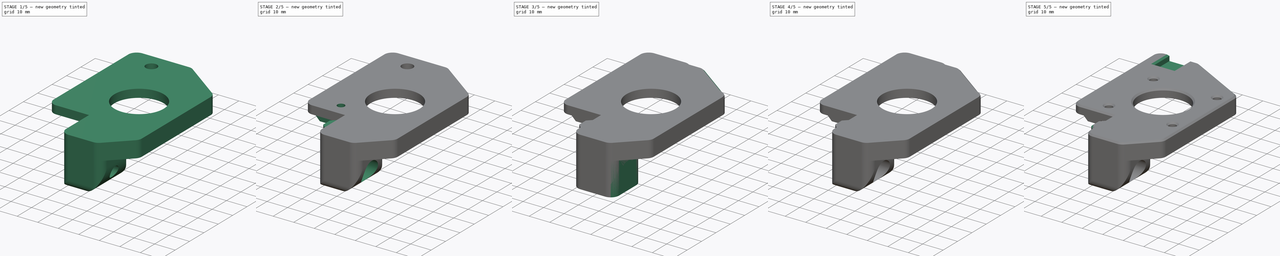
[diagram: build sequence overview — one tinted view per stage of 5, left to right]
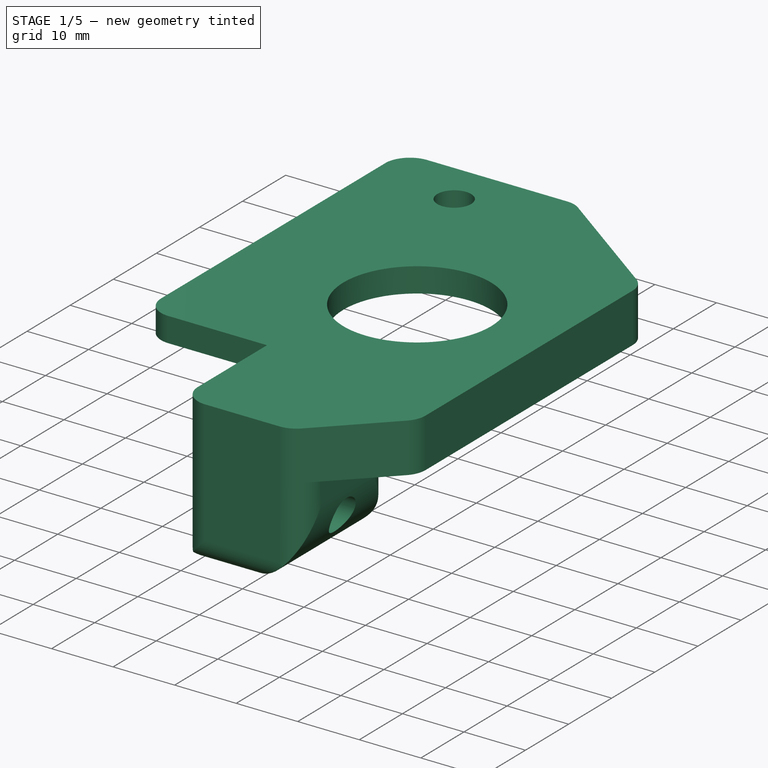
[diagram: stage 1 of 5 — iso view after this stage's code; geometry added in this stage tinted green]
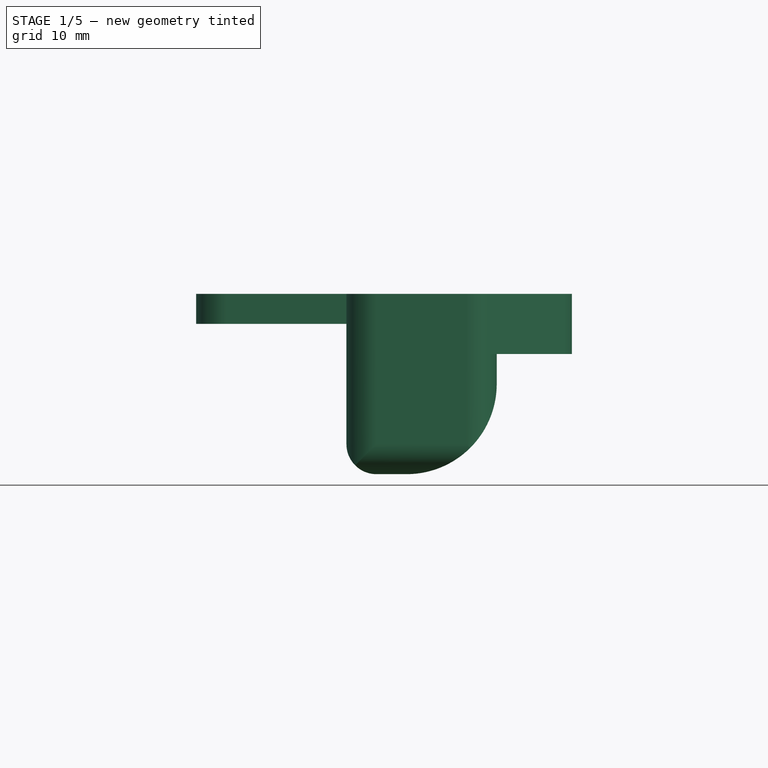
[diagram: stage 1 of 5 — front view after this stage's code; geometry added in this stage tinted green]
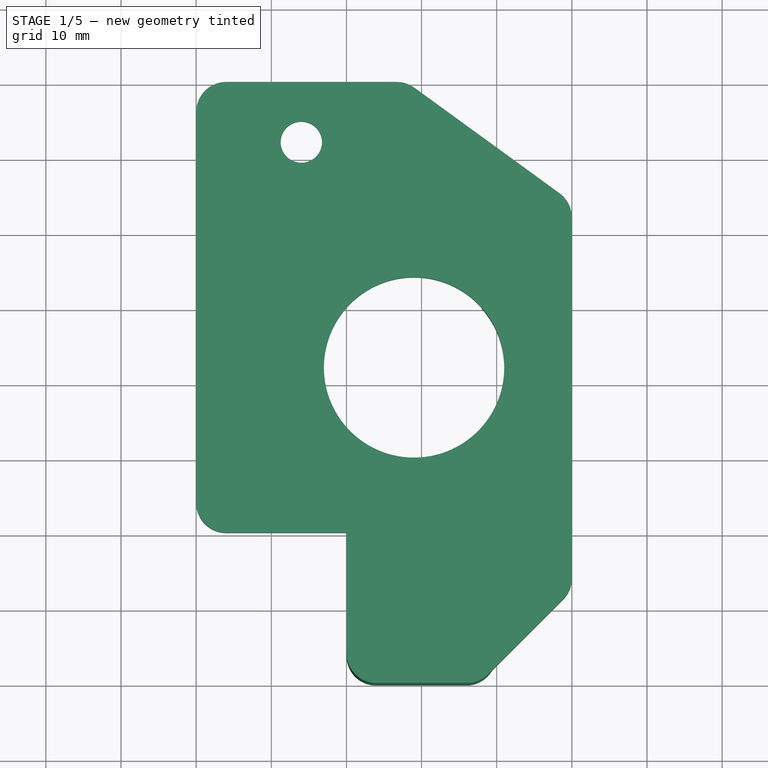
[diagram: stage 1 of 5 — top view after this stage's code; geometry added in this stage tinted green]
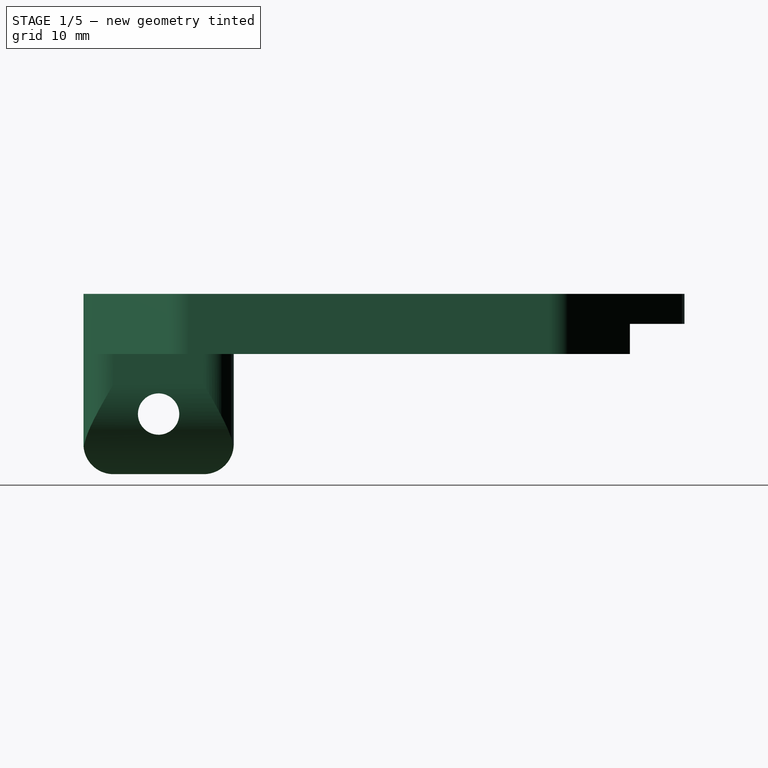
[diagram: stage 1 of 5 — right view after this stage's code; geometry added in this stage tinted green]
FCSTD DOCUMENT  (FreeCAD 1.0R39109 (Git))
Label: motor-mounts
License: All rights reserved
LicenseURL: http://en.wikipedia.org/wiki/All_rights_reserved
objects: Sketcher::SketchObject×18, PartDesign::Pocket×9, PartDesign::Pad×8, PartDesign::LinearPattern×4, PartDesign::Groove×2, PartDesign::MultiTransform×2, PartDesign::Chamfer×2, PartDesign::Body×2, PartDesign::SubShapeBinder×1
note: 114 computed .brp shape members not serialized (recipe doc carries the construction recipe); baked Part::Feature solids carry a one-line shape summary decoded from their .brp

FEATURE [Sketcher::SketchObject] Sketch001
  ArcFitTolerance = 0
  AttachmentSupport = -> [XY_Plane017]
  FullyConstrained = true
  MakeInternals = false
  MapMode = 5
  sketch-geometry (32):
    g0: LineSegment StartX=0 StartY=-16 StartZ=0 EndX=0 EndY=0 EndZ=0
    g1: LineSegment StartX=-16 StartY=0 StartZ=0 EndX=0 EndY=0 EndZ=0
    g2: LineSegment StartX=-20 StartY=4 StartZ=0 EndX=-20 EndY=56 EndZ=0
    g3: LineSegment StartX=30 StartY=41.9631 StartZ=0 EndX=30 EndY=-6 EndZ=0
    g4: LineSegment StartX=16 StartY=-20 StartZ=0 EndX=4 EndY=-20 EndZ=0
    g5: GeomPoint [constr] X=9 Y=22 Z=0
    g6: Circle CenterX=9 CenterY=22 CenterZ=0 NormalX=0 NormalY=0 NormalZ=1 AngleXU=0 Radius=12
    g7: LineSegment StartX=28.3527 StartY=45.198 StartZ=0 EndX=9.05195 EndY=59.2349 EndZ=0
    g8: LineSegment StartX=-16 StartY=60 StartZ=0 EndX=6.69926 EndY=60 EndZ=0
    g9: LineSegment StartX=18.8284 StartY=-18.8284 StartZ=0 EndX=28.8284 EndY=-8.82843 EndZ=0
    g10: ArcOfCircle CenterX=-16 CenterY=56 CenterZ=0 NormalX=0 NormalY=0 NormalZ=1 AngleXU=0 Radius=4 StartAngle=1.5708 EndAngle=3.14159
    g11: GeomPoint [constr] X=-20 Y=60 Z=0
    g12: ArcOfCircle CenterX=6.69926 CenterY=56 CenterZ=0 NormalX=0 NormalY=0 NormalZ=1 AngleXU=0 Radius=4 StartAngle=0.942 EndAngle=1.5708
    g13: GeomPoint [constr] X=8 Y=60 Z=0
    g14: GeomPoint [constr] X=8 Y=44 Z=0
    g15: ArcOfCircle CenterX=26 CenterY=41.9631 CenterZ=0 NormalX=0 NormalY=0 NormalZ=1 AngleXU=0 Radius=4 StartAngle=5e-16 EndAngle=0.942
    g16: GeomPoint [constr] X=30 Y=44 Z=0
    g17: ArcOfCircle CenterX=26 CenterY=-6 CenterZ=0 NormalX=0 NormalY=0 NormalZ=1 AngleXU=0 Radius=4 StartAngle=5.49779 EndAngle=6.28319
    g18: GeomPoint [constr] X=30 Y=-7.65685 Z=0
    g19: ArcOfCircle CenterX=16 CenterY=-16 CenterZ=0 NormalX=0 NormalY=0 NormalZ=1 AngleXU=0 Radius=4 StartAngle=4.71239 EndAngle=5.49779
    g20: GeomPoint [constr] X=17.6569 Y=-20 Z=0
    g21: ArcOfCircle CenterX=4 CenterY=-16 CenterZ=0 NormalX=0 NormalY=0 NormalZ=1 AngleXU=0 Radius=4 StartAngle=3.14159 EndAngle=4.71239
    g22: GeomPoint [constr] X=0 Y=-20 Z=0
    g23: ArcOfCircle CenterX=-16 CenterY=4 CenterZ=0 NormalX=0 NormalY=0 NormalZ=1 AngleXU=0 Radius=4 StartAngle=3.14159 EndAngle=4.71239
    g24: GeomPoint [constr] X=-20 Y=0 Z=0
    g25: Circle CenterX=-6 CenterY=52 CenterZ=0 NormalX=0 NormalY=0 NormalZ=1 AngleXU=0 Radius=2.75
    g26: Circle [constr] CenterX=24.5 CenterY=37.5 CenterZ=0 NormalX=0 NormalY=0 NormalZ=1 AngleXU=0 Radius=1.75
    g27: Circle [constr] CenterX=24.5 CenterY=6.5 CenterZ=0 NormalX=0 NormalY=0 NormalZ=1 AngleXU=0 Radius=1.75
    g28: Circle [constr] CenterX=-6.5 CenterY=6.5 CenterZ=0 NormalX=0 NormalY=0 NormalZ=1 AngleXU=0 Radius=1.75
    g29: Circle [constr] CenterX=-6.5 CenterY=37.5 CenterZ=0 NormalX=0 NormalY=0 NormalZ=1 AngleXU=0 Radius=1.75
    g30: LineSegment [constr] StartX=24.5 StartY=37.5 StartZ=0 EndX=24.5 EndY=6.5 EndZ=0
    g31: LineSegment [constr] StartX=24.5 StartY=37.5 StartZ=0 EndX=-6.5 EndY=37.5 EndZ=0
  constraints (75):
    c: Vertical(g0)
    c: Horizontal(g1)
    c: Vertical(g2)
    c: Vertical(g3)
    c: Horizontal(g4)
    c: Coincident(g0,g1)
    c: Coincident(g0,g-1)
    c: DistanceX(g24,g0) = 20
    c: DistanceY(g22,g0) = 20
    c: DistanceY(g0,g5) = 22
    c: DistanceX(g0,g5) = 9
    c: Coincident(g6,g5)
    c: Diameter(g6) = 24
    c: DistanceY(g6,g16) = 22
    c: Horizontal(g8)
    c: DistanceY(g14,g13) = 16
    c: Angle(g9) = 0.785398
    c: PointOnObject(g11,g2)
    c: PointOnObject(g11,g8)
    c: Tangent(g2,g10) = 1.5708
    c: Tangent(g8,g10) = 1.5708
    c: Tangent(g7,g12) = -1.5708
    c: Tangent(g8,g12) = 1.5708
    c: PointOnObject(g16,g3)
    c: Tangent(g3,g15) = 1.5708
    c: PointOnObject(g18,g3)
    c: PointOnObject(g18,g9)
    c: Tangent(g3,g17) = 1.5708
    c: Tangent(g9,g17) = -1.5708
    c: PointOnObject(g20,g4)
    c: PointOnObject(g20,g9)
    c: Tangent(g4,g19) = 1.5708
    c: Tangent(g9,g19) = -1.5708
    c: PointOnObject(g22,g0)
    c: PointOnObject(g22,g4)
    c: Tangent(g0,g21) = 1.5708
    c: Tangent(g4,g21) = 1.5708
    c: PointOnObject(g24,g1)
    c: PointOnObject(g24,g2)
    c: Tangent(g1,g23) = -1.5708
    c: Tangent(g2,g23) = 1.5708
    c: Equal(g10,g12)
    c: Equal(g15,g17)
    c: Equal(g17,g19)
    c: Equal(g19,g21)
    c: Equal(g21,g23)
    c: Radius(g23) = 4
    c: Symmetric(g14,g11,g25)
    c: Diameter(g25) = 5.5
    c: Horizontal(g14,g16)
    c: Vertical(g14,g13)
    c: Tangent(g7,g15) = -1.5708
    c: PointOnObject(g16,g7)
    c: Equal(g10,g15)
    c: DistanceX(g4) = 16
    c: DistanceY(g0,g11) = 60
    c: Vertical(g29,g28)
    c: Vertical(g27,g26)
    c: Horizontal(g26,g29)
    c: Horizontal(g28,g27)
    c: Symmetric(g27,g29,g6)
    c: Equal(g26,g29)
    c: Equal(g29,g28)
    c: Equal(g28,g27)
    c: Diameter(g27) = 3.5
    c: Coincident(g30,g26)
    c: Coincident(g30,g27)
    c: Coincident(g31,g26)
    c: Coincident(g31,g29)
    c: Equal(g31,g30)
    c: DistanceX(g31,g31) = 31
    c: DistanceX(g16) = 30
    c: PointOnObject(g13,g7)
    c: PointOnObject(g13,g8)
    c: DistanceX(g13) = 8
FEATURE [PartDesign::Pad] Pad003
  Direction = (0,0,1)
  Length = 8
  Length2 = 10
  Midplane = true
  Profile = -> Sketch001
  ReferenceAxis = -> Sketch001 [N_Axis]
  Suppressed = false
  Type = 0
FEATURE [Sketcher::SketchObject] Sketch002
  ArcFitTolerance = 0
  AttachmentSupport = -> [XY_Plane017]
  FullyConstrained = true
  MakeInternals = false
  MapMode = 5
  sketch-geometry (8):
    g0: LineSegment StartX=0 StartY=0 StartZ=0 EndX=0 EndY=22 EndZ=0
    g1: LineSegment StartX=18 StartY=22 StartZ=0 EndX=18 EndY=64 EndZ=0
    g2: LineSegment StartX=18 StartY=64 StartZ=0 EndX=-20 EndY=64 EndZ=0
    g3: LineSegment StartX=-20 StartY=64 StartZ=0 EndX=-20 EndY=0 EndZ=0
    g4: LineSegment StartX=-20 StartY=0 StartZ=0 EndX=0 EndY=0 EndZ=0
    g5: LineSegment StartX=0 StartY=22 StartZ=0 EndX=18 EndY=22 EndZ=0
    g6: GeomPoint [constr] X=9 Y=22 Z=0
    g7: GeomPoint [constr] X=24.5 Y=22 Z=0
  constraints (20):
    c: Coincident(g0,g-1)
    c: PointOnObject(g0,g-2)
    c: Vertical(g1)
    c: Coincident(g2,g1)
    c: Horizontal(g2)
    c: Coincident(g3,g2)
    c: PointOnObject(g3,g-1)
    c: Vertical(g3)
    c: Coincident(g4,g3)
    c: Coincident(g4,g0)
    c: DistanceX(g4,g4) = 20
    c: Coincident(g5,g0)
    c: Coincident(g5,g1)
    c: Horizontal(g5)
    c: DistanceY(g0) = 22
    c: DistanceY(g3,g3) = 64
    c: Symmetric(g1,g0,g6)
    c: Horizontal(g7,g1)
    c: DistanceX(g6,g7) = 15.5
    c: DistanceX(g0,g6) = 9
FEATURE [PartDesign::Pocket] Pocket
  BaseFeature = -> Pad003
  Direction = (0,0,-1)
  Length = 5
  Length2 = 5
  Profile = -> Sketch002
  ReferenceAxis = -> Sketch002 [N_Axis]
  Suppressed = false
  Type = 1
FEATURE [Sketcher::SketchObject] Sketch003
  ArcFitTolerance = 0
  AttachmentOffset = pos=(0,0,-4) rot=(0,0,1;0rad)
  AttachmentSupport = -> [XY_Plane017]
  FullyConstrained = true
  MakeInternals = false
  MapMode = 5
  Placement = pos=(0,0,-4) rot=(0,0,1;0rad)
  sketch-geometry (12):
    g0: LineSegment StartX=4 StartY=0 StartZ=0 EndX=16 EndY=0 EndZ=0
    g1: LineSegment StartX=20 StartY=-4 StartZ=0 EndX=20 EndY=-16 EndZ=0
    g2: LineSegment StartX=16 StartY=-20 StartZ=0 EndX=4 EndY=-20 EndZ=0
    g3: LineSegment StartX=0 StartY=-16 StartZ=0 EndX=0 EndY=-4 EndZ=0
    g4: ArcOfCircle CenterX=16 CenterY=-16 CenterZ=0 NormalX=0 NormalY=0 NormalZ=1 AngleXU=0 Radius=4 StartAngle=4.71239 EndAngle=6.28319
    g5: GeomPoint [constr] X=20 Y=-20 Z=0
    g6: ArcOfCircle CenterX=16 CenterY=-4 CenterZ=0 NormalX=0 NormalY=0 NormalZ=1 AngleXU=0 Radius=4 StartAngle=0 EndAngle=1.5708
    g7: GeomPoint [constr] X=20 Y=0 Z=0
    g8: ArcOfCircle CenterX=4 CenterY=-4 CenterZ=0 NormalX=0 NormalY=0 NormalZ=1 AngleXU=0 Radius=4 StartAngle=1.5708 EndAngle=3.14159
    g9: GeomPoint [constr] X=0 Y=0 Z=0
    g10: ArcOfCircle CenterX=4 CenterY=-16 CenterZ=0 NormalX=0 NormalY=0 NormalZ=1 AngleXU=0 Radius=4 StartAngle=3.14159 EndAngle=4.71239
    g11: GeomPoint [constr] X=0 Y=-20 Z=0
  constraints (27):
    c: Horizontal(g0)
    c: Horizontal(g2)
    c: Vertical(g1)
    c: Vertical(g3)
    c: Coincident(g9,g-1)
    c: DistanceY(g11,g9) = 20
    c: PointOnObject(g5,g1)
    c: PointOnObject(g5,g2)
    c: Tangent(g1,g4) = 1.5708
    c: Tangent(g2,g4) = 1.5708
    c: PointOnObject(g7,g0)
    c: PointOnObject(g7,g1)
    c: Tangent(g0,g6) = 1.5708
    c: Tangent(g1,g6) = 1.5708
    c: PointOnObject(g9,g0)
    c: PointOnObject(g9,g3)
    c: Tangent(g0,g8) = 1.5708
    c: Tangent(g3,g8) = 1.5708
    c: PointOnObject(g11,g2)
    c: PointOnObject(g11,g3)
    c: Tangent(g2,g10) = 1.5708
    c: Tangent(g3,g10) = 1.5708
    c: Equal(g10,g8)
    c: Equal(g8,g6)
    c: Equal(g6,g4)
    c: Radius(g10) = 4
    c: DistanceX(g2) = 16
FEATURE [PartDesign::Pad] Pad004
  BaseFeature = -> Pocket
  Direction = (0,0,1)
  Length = 16
  Length2 = 10
  Profile = -> Sketch003
  ReferenceAxis = -> Sketch003 [N_Axis]
  Reversed = true
  Suppressed = false
  Type = 0
FEATURE [Sketcher::SketchObject] Sketch004
  ArcFitTolerance = 0
  AttachmentSupport = -> [XZ_Plane017]
  FullyConstrained = true
  MakeInternals = false
  MapMode = 5
  Placement = pos=(0,0,0) rot=(1,0,0;1.5708rad)
  sketch-geometry (6):
    g0: ArcOfCircle CenterX=4 CenterY=-16 CenterZ=0 NormalX=0 NormalY=0 NormalZ=1 AngleXU=0 Radius=4 StartAngle=3.1416 EndAngle=4.71239
    g1: ArcOfCircle CenterX=8 CenterY=-8 CenterZ=0 NormalX=0 NormalY=0 NormalZ=1 AngleXU=0 Radius=12 StartAngle=4.71239 EndAngle=6.28319
    g2: LineSegment StartX=8 StartY=-20 StartZ=0 EndX=20 EndY=-20 EndZ=0
    g3: LineSegment StartX=20 StartY=-8 StartZ=0 EndX=20 EndY=-20 EndZ=0
    g4: LineSegment StartX=4 StartY=-20 StartZ=0 EndX=2.68137e-11 EndY=-20 EndZ=0
    g5: LineSegment StartX=2.68137e-11 StartY=-20 StartZ=0 EndX=2.68137e-11 EndY=-16 EndZ=0
  constraints (18):
    c: PointOnObject(g0,g-2)
    c: Coincident(g3,g2)
    c: Vertical(g3)
    c: Coincident(g4,g0)
    c: Horizontal(g4)
    c: Tangent(g4,g0)
    c: Coincident(g5,g4)
    c: Coincident(g5,g0)
    c: Vertical(g5)
    c: Tangent(g5,g0)
    c: Tangent(g2,g1) = -1.5708
    c: Horizontal(g2)
    c: Horizontal(g2,g4)
    c: Radius(g0) = 4
    c: Radius(g1) = 12
    c: DistanceX(g4,g2) = 20
    c: DistanceY(g4) = -20
    c: Tangent(g3,g1) = 1.5708
FEATURE [PartDesign::Pocket] Pocket001
  BaseFeature = -> Pad004
  Direction = (0,1,-2e-16)
  Length = 5
  Length2 = 5
  Midplane = true
  Profile = -> Sketch004
  ReferenceAxis = -> Sketch004 [N_Axis]
  Suppressed = false
  Type = 1
FEATURE [Sketcher::SketchObject] Sketch005
  ArcFitTolerance = 0
  AttachmentSupport = -> [YZ_Plane017]
  FullyConstrained = true
  MakeInternals = false
  MapMode = 5
  Placement = pos=(0,0,0) rot=(0.57735,0.57735,0.57735;2.0944rad)
  sketch-geometry (7):
    g0: ArcOfCircle CenterX=-4 CenterY=-16 CenterZ=0 NormalX=0 NormalY=0 NormalZ=1 AngleXU=0 Radius=4 StartAngle=4.71239 EndAngle=6.28318
    g1: ArcOfCircle CenterX=-16 CenterY=-16 CenterZ=0 NormalX=0 NormalY=0 NormalZ=1 AngleXU=0 Radius=4 StartAngle=3.1416 EndAngle=4.71239
    g2: LineSegment StartX=-16 StartY=-20 StartZ=0 EndX=-20 EndY=-20 EndZ=0
    g3: LineSegment StartX=-20 StartY=-20 StartZ=0 EndX=-20 EndY=-16 EndZ=0
    g4: LineSegment StartX=-8.28391e-11 StartY=-16 StartZ=0 EndX=0 EndY=-20 EndZ=0
    g5: LineSegment StartX=0 StartY=-20 StartZ=0 EndX=-4 EndY=-20 EndZ=0
    g6: Circle CenterX=-10 CenterY=-12 CenterZ=0 NormalX=0 NormalY=0 NormalZ=1 AngleXU=0 Radius=2.75
  constraints (21):
    c: PointOnObject(g0,g-2)
    c: Coincident(g3,g2)
    c: Coincident(g3,g1)
    c: Tangent(g3,g1)
    c: Coincident(g4,g0)
    c: PointOnObject(g4,g-2)
    c: Tangent(g4,g0)
    c: Coincident(g5,g4)
    c: Tangent(g2,g1) = 1.5708
    c: Horizontal(g2)
    c: Vertical(g3)
    c: Radius(g1) = 4
    c: Horizontal(g2,g4)
    c: Horizontal(g5)
    c: Tangent(g5,g0) = 1.5708
    c: Equal(g0,g1)
    c: DistanceX(g2,g4) = 20
    c: DistanceY(g2) = -20
    c: DistanceY(g6) = -12
    c: DistanceX(g6) = -10
    c: Diameter(g6) = 5.5
FEATURE [PartDesign::Pocket] Pocket002
  BaseFeature = -> Pocket001
  Direction = (-1,0,0)
  Length = 5
  Length2 = 5
  Midplane = true
  Profile = -> Sketch005
  ReferenceAxis = -> Sketch005 [N_Axis]
  Suppressed = false
  Type = 1
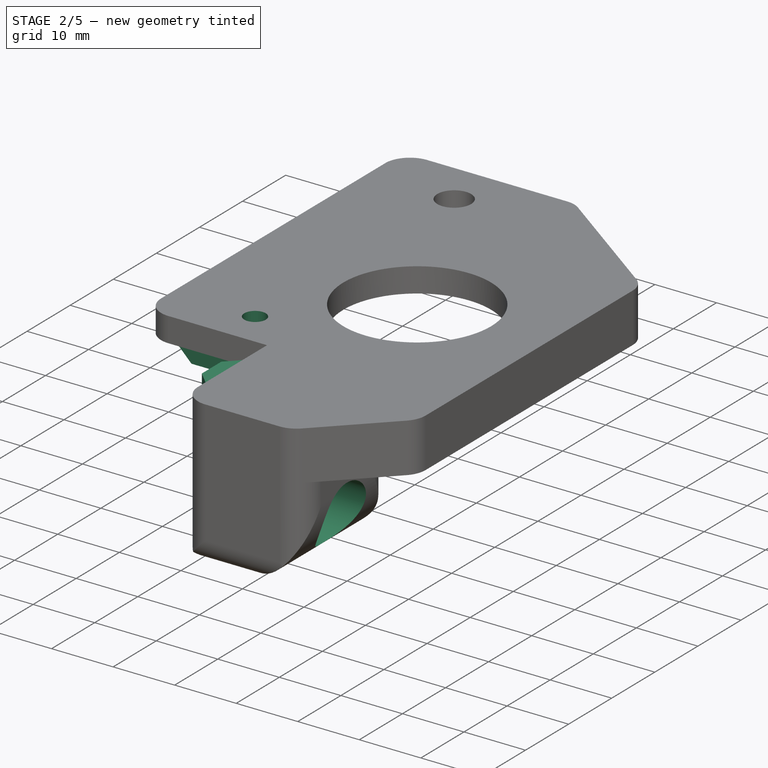
[diagram: stage 2 of 5 — iso view after this stage's code; geometry added in this stage tinted green]
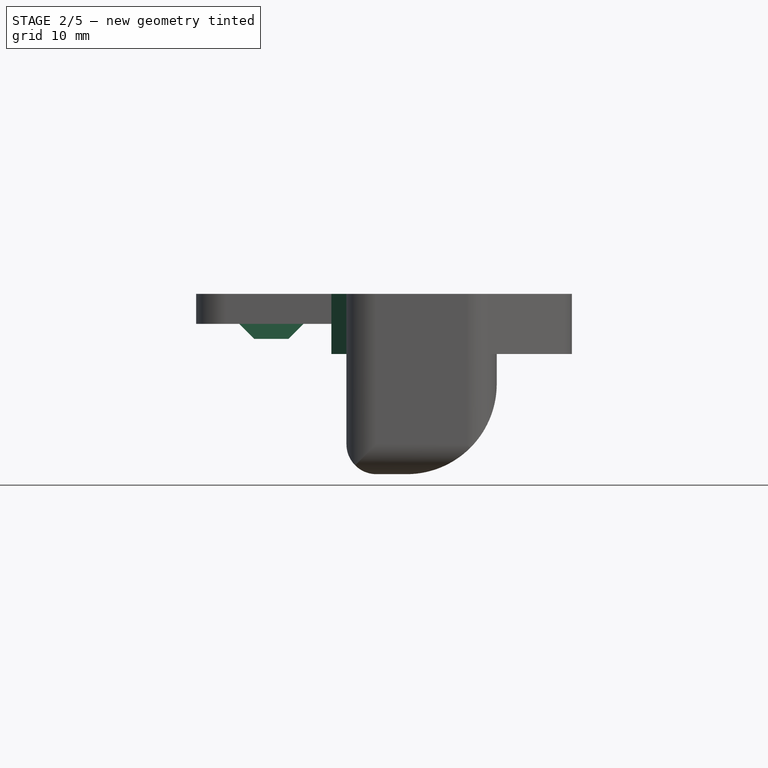
[diagram: stage 2 of 5 — front view after this stage's code; geometry added in this stage tinted green]
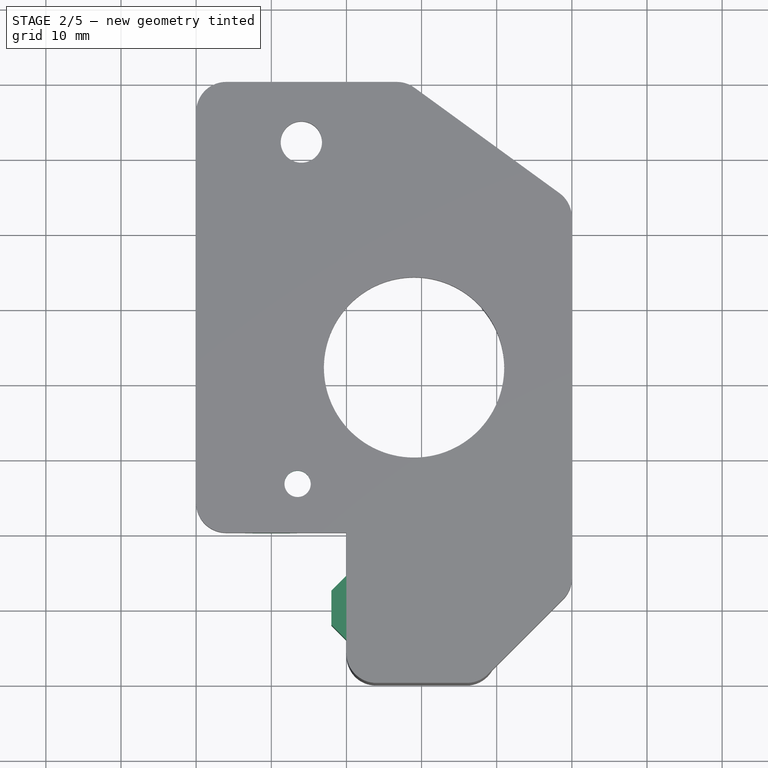
[diagram: stage 2 of 5 — top view after this stage's code; geometry added in this stage tinted green]
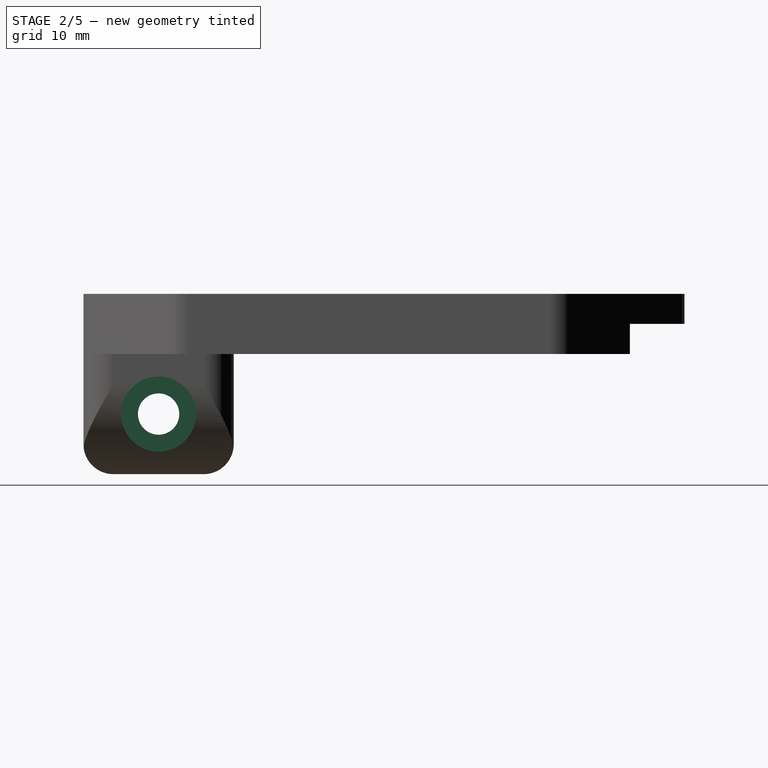
[diagram: stage 2 of 5 — right view after this stage's code; geometry added in this stage tinted green]
FEATURE [Sketcher::SketchObject] Sketch006
  ArcFitTolerance = 0
  AttachmentOffset = pos=(0,0,4) rot=(0,0,1;0rad)
  AttachmentSupport = -> [YZ_Plane017]
  FullyConstrained = true
  MakeInternals = false
  MapMode = 5
  Placement = pos=(4,0,0) rot=(0.57735,0.57735,0.57735;2.0944rad)
  sketch-geometry (1):
    g0: Circle CenterX=-10 CenterY=-12 CenterZ=0 NormalX=0 NormalY=0 NormalZ=1 AngleXU=0 Radius=5
  constraints (3):
    c: DistanceX(g0) = -10
    c: DistanceY(g0) = -12
    c: Diameter(g0) = 10
FEATURE [PartDesign::Pocket] Pocket003
  BaseFeature = -> Pocket002
  Direction = (-1,0,0)
  Length = 5
  Length2 = 5
  Profile = -> Sketch006
  ReferenceAxis = -> Sketch006 [N_Axis]
  Reversed = true
  Suppressed = false
  Type = 1
FEATURE [Sketcher::SketchObject] Sketch348
  ArcFitTolerance = 0
  AttachmentSupport = -> [XZ_Plane017]
  FullyConstrained = true
  MakeInternals = false
  MapMode = 5
  Placement = pos=(0,0,0) rot=(1,0,0;1.5708rad)
  sketch-geometry (10):
    g0: LineSegment [constr] StartX=-14.7 StartY=0 StartZ=0 EndX=-5.3 EndY=0 EndZ=0
    g1: LineSegment [constr] StartX=-5.3 StartY=0 StartZ=0 EndX=-7.3 EndY=-2 EndZ=0
    g2: LineSegment [constr] StartX=-7.3 StartY=-2 StartZ=0 EndX=-12.7 EndY=-2 EndZ=0
    g3: LineSegment [constr] StartX=-12.7 StartY=-2 StartZ=0 EndX=-14.7 EndY=0 EndZ=0
    g4: GeomPoint [constr] X=-10 Y=-2 Z=0
    g5: LineSegment StartX=-5.72426 StartY=0 StartZ=0 EndX=-7.72426 EndY=-2 EndZ=0
    g6: LineSegment StartX=-7.72426 StartY=-2 StartZ=0 EndX=-12.2757 EndY=-2 EndZ=0
    g7: LineSegment StartX=-12.2757 StartY=-2 StartZ=0 EndX=-14.2757 EndY=0 EndZ=0
    g8: LineSegment StartX=-14.2757 StartY=0 StartZ=0 EndX=-5.72426 EndY=0 EndZ=0
    g9: LineSegment [constr] StartX=-6.3 StartY=-1 StartZ=0 EndX=-6.51213 EndY=-0.787868 EndZ=0
  constraints (27):
    c: PointOnObject(g0,g-1)
    c: PointOnObject(g0,g-1)
    c: Coincident(g0,g1)
    c: Coincident(g1,g2)
    c: Horizontal(g2)
    c: Coincident(g2,g3)
    c: Coincident(g3,g0)
    c: Perpendicular(g1,g3)
    c: Angle(g1) = -2.35619
    c: DistanceY(g1,g1) = 2
    c: Symmetric(g2,g1,g4)
    c: DistanceX(g4) = -10
    c: DistanceX(g2,g2) = 5.4
    c: PointOnObject(g5,g0)
    c: PointOnObject(g5,g2)
    c: Coincident(g5,g6)
    c: Coincident(g6,g7)
    c: PointOnObject(g7,g0)
    c: Coincident(g7,g8)
    c: Coincident(g8,g5)
    c: Symmetric(g5,g6,g4)
    c: Parallel(g5,g1)
    c: Parallel(g7,g3)
    c: PointOnObject(g9,g5)
    c: Perpendicular(g1,g9)
    c: Symmetric(g1,g0,g9)
    c: Distance(g9) = 0.3
FEATURE [PartDesign::Pad] Pad084
  BaseFeature = -> Pocket003
  Direction = (0,-1,2e-16)
  Length = 42
  Length2 = 10
  Profile = -> Sketch348
  ReferenceAxis = -> Sketch348 [N_Axis]
  Reversed = true
  Suppressed = false
  Type = 0
FEATURE [Sketcher::SketchObject] Sketch349
  ArcFitTolerance = 0
  AttachmentSupport = -> [XY_Plane017]
  FullyConstrained = true
  MakeInternals = false
  MapMode = 5
  sketch-geometry (10):
    g0: LineSegment [constr] StartX=0 StartY=-5.3 StartZ=0 EndX=0 EndY=-14.7 EndZ=0
    g1: LineSegment [constr] StartX=0 StartY=-14.7 StartZ=0 EndX=-2 EndY=-12.7 EndZ=0
    g2: LineSegment [constr] StartX=-2 StartY=-12.7 StartZ=0 EndX=-2 EndY=-7.3 EndZ=0
    g3: LineSegment [constr] StartX=-2 StartY=-7.3 StartZ=0 EndX=0 EndY=-5.3 EndZ=0
    g4: LineSegment StartX=1.13e-14 StartY=-5.72426 StartZ=0 EndX=-2 EndY=-7.72426 EndZ=0
    g5: LineSegment StartX=-2 StartY=-7.72426 StartZ=0 EndX=-2 EndY=-12.2757 EndZ=0
    g6: LineSegment StartX=-2 StartY=-12.2757 StartZ=0 EndX=-1.15e-14 EndY=-14.2757 EndZ=0
    g7: LineSegment StartX=-1.15e-14 StartY=-14.2757 StartZ=0 EndX=1.13e-14 EndY=-5.72426 EndZ=0
    g8: GeomPoint [constr] X=0 Y=-10 Z=0
    g9: LineSegment [constr] StartX=-1 StartY=-6.3 StartZ=0 EndX=-0.787868 EndY=-6.51213 EndZ=0
  constraints (27):
    c: PointOnObject(g0,g-2)
    c: PointOnObject(g0,g-2)
    c: Coincident(g0,g1)
    c: Coincident(g1,g2)
    c: Vertical(g2)
    c: Coincident(g2,g3)
    c: Coincident(g3,g0)
    c: PointOnObject(g4,g0)
    c: Coincident(g4,g5)
    c: PointOnObject(g5,g2)
    c: Coincident(g5,g6)
    c: Coincident(g6,g7)
    c: Coincident(g7,g4)
    c: Symmetric(g0,g0,g8)
    c: Perpendicular(g3,g1)
    c: Vertical(g5)
    c: Parallel(g4,g3)
    c: Parallel(g1,g6)
    c: Symmetric(g6,g4,g8)
    c: Angle(g3) = 0.785398
    c: DistanceX(g3,g3) = 2
    c: DistanceY(g2,g2) = 5.4
    c: DistanceY(g8) = -10
    c: PointOnObject(g9,g4)
    c: Symmetric(g0,g2,g9)
    c: Distance(g9) = 0.3
    c: Perpendicular(g3,g9)
FEATURE [PartDesign::Pad] Pad085
  BaseFeature = -> Pad084
  Direction = (0,0,1)
  Length = 8
  Length2 = 10
  Midplane = true
  Profile = -> Sketch349
  ReferenceAxis = -> Sketch349 [N_Axis]
  Suppressed = false
  Type = 0
FEATURE [Sketcher::SketchObject] Sketch360
  ArcFitTolerance = 1e-06
  AttachmentOffset = pos=(-6.5,0,-6.5) rot=(0,0,1;0rad)
  AttachmentSupport = -> [XZ_Plane017]
  FullyConstrained = true
  MakeInternals = false
  MapMode = 5
  Placement = pos=(-6.5,6.5,-1.4e-15) rot=(1,0,0;1.5708rad)
  sketch-geometry (6):
    g0: LineSegment StartX=0 StartY=4 StartZ=0 EndX=1.75 EndY=4 EndZ=0
    g1: LineSegment StartX=1.75 StartY=4 StartZ=0 EndX=1.75 EndY=2 EndZ=0
    g2: LineSegment StartX=1.75 StartY=2 StartZ=0 EndX=3.75 EndY=-2e-16 EndZ=0
    g3: LineSegment StartX=3.75 StartY=-2e-16 StartZ=0 EndX=3.75 EndY=-4 EndZ=0
    g4: LineSegment StartX=3.75 StartY=-4 StartZ=0 EndX=0 EndY=-4 EndZ=0
    g5: LineSegment StartX=0 StartY=-4 StartZ=0 EndX=0 EndY=4 EndZ=0
  constraints (18):
    c: PointOnObject(g0,g-2)
    c: Horizontal(g0)
    c: Coincident(g0,g1)
    c: Coincident(g1,g2)
    c: PointOnObject(g2,g-1)
    c: Coincident(g2,g3)
    c: Vertical(g3)
    c: Coincident(g3,g4)
    c: PointOnObject(g4,g-2)
    c: Horizontal(g4)
    c: Coincident(g4,g5)
    c: Coincident(g5,g0)
    c: Vertical(g1)
    c: DistanceY(g0) = 4
    c: DistanceX(g0,g0) = 1.75
    c: Angle(g2) = -0.785398
    c: DistanceX(g2,g2) = 2
    c: DistanceY(g3,g3) = 4
FEATURE [PartDesign::Groove] Groove
  Angle = 360
  Angle2 = 60
  Axis = (0,2e-16,1)
  Base = (-6.5,6.5,-1.4e-15)
  BaseFeature = -> Pad085
  Profile = -> Sketch360
  ReferenceAxis = -> Sketch360 [V_Axis]
  Suppressed = false
  Type = 0
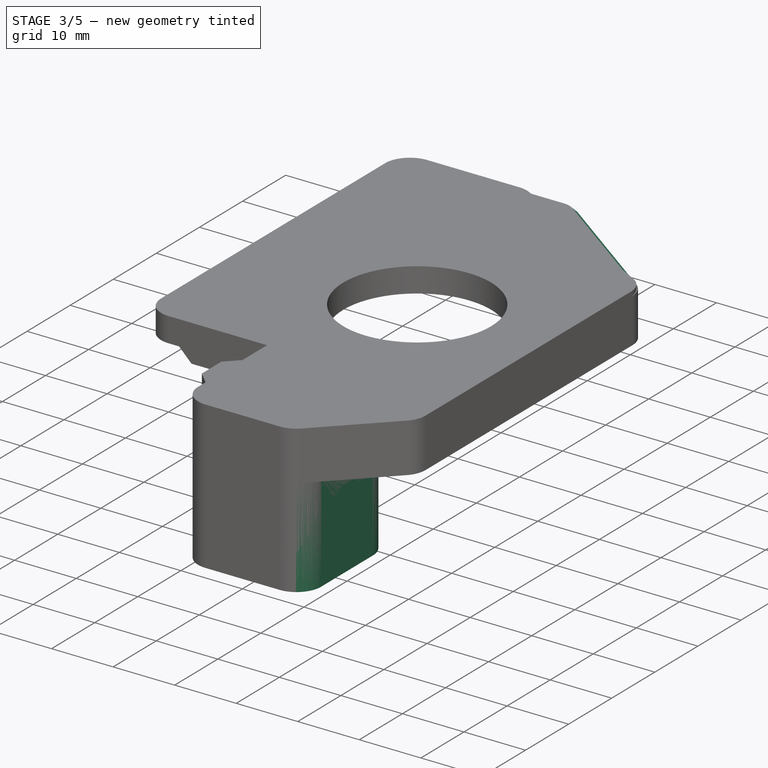
[diagram: stage 3 of 5 — iso view after this stage's code; geometry added in this stage tinted green]
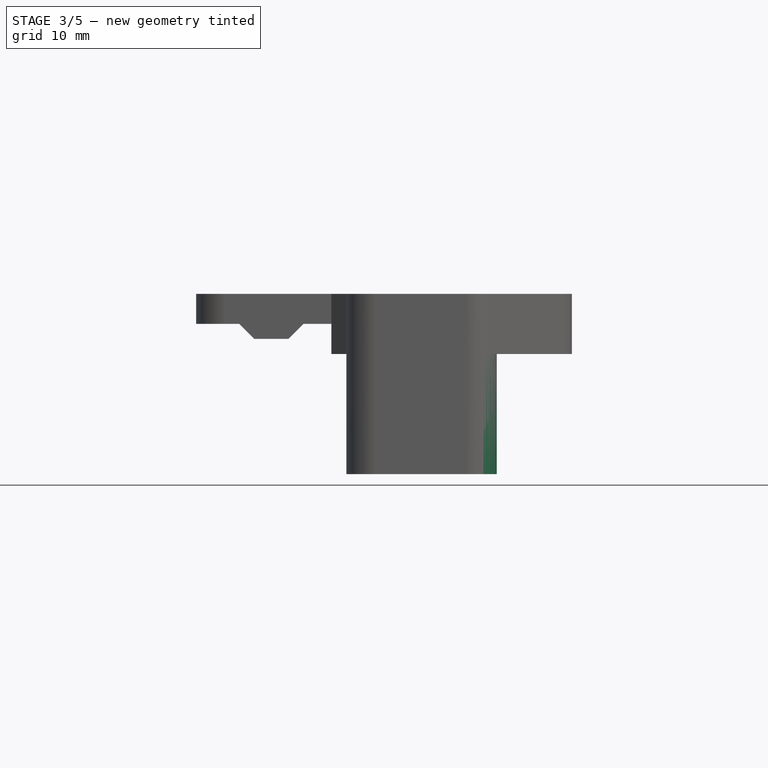
[diagram: stage 3 of 5 — front view after this stage's code; geometry added in this stage tinted green]
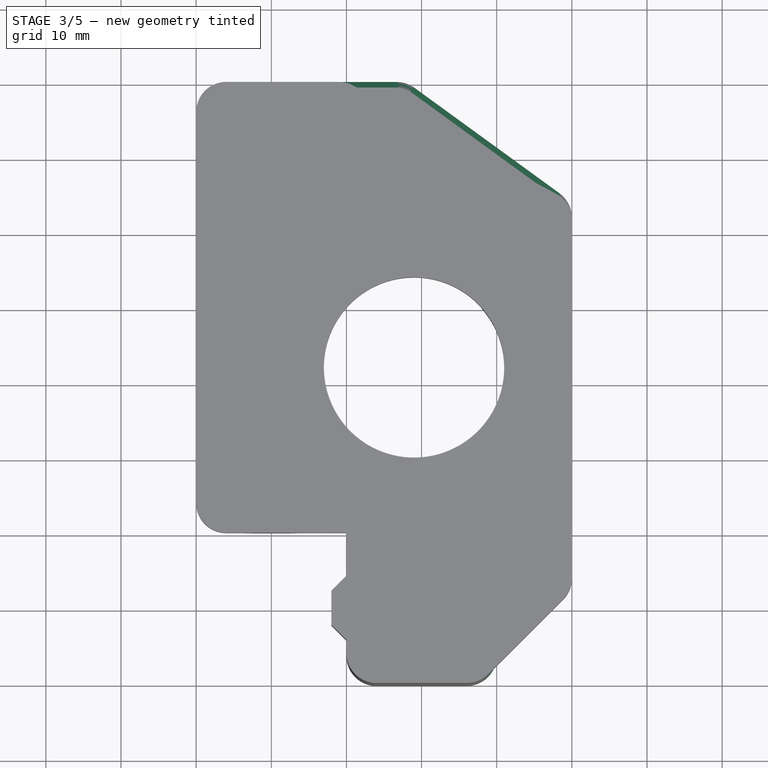
[diagram: stage 3 of 5 — top view after this stage's code; geometry added in this stage tinted green]
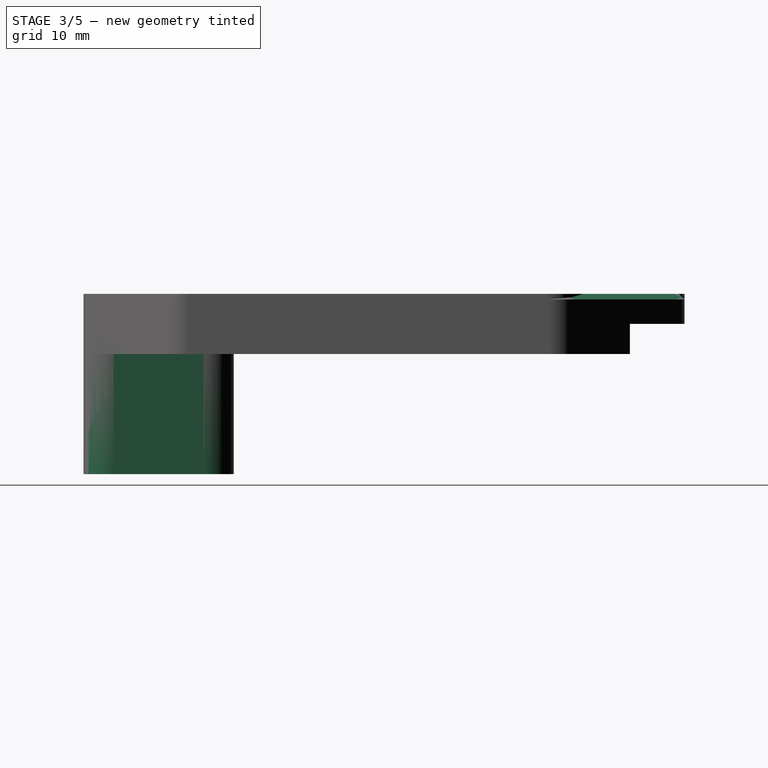
[diagram: stage 3 of 5 — right view after this stage's code; geometry added in this stage tinted green]
FEATURE [Sketcher::SketchObject] Sketch351
  ArcFitTolerance = 0
  AttachmentSupport = -> [XY_Plane018]
  FullyConstrained = true
  MakeInternals = false
  MapMode = 5
  sketch-geometry (31):
    g0: LineSegment StartX=0 StartY=-16 StartZ=0 EndX=0 EndY=0 EndZ=0
    g1: LineSegment StartX=-16 StartY=0 StartZ=0 EndX=0 EndY=0 EndZ=0
    g2: LineSegment StartX=-20 StartY=4 StartZ=0 EndX=-20 EndY=56 EndZ=0
    g3: LineSegment StartX=30 StartY=41.6 StartZ=0 EndX=30 EndY=-6 EndZ=0
    g4: LineSegment StartX=16 StartY=-20 StartZ=0 EndX=4 EndY=-20 EndZ=0
    g5: GeomPoint [constr] X=9 Y=22 Z=0
    g6: Circle CenterX=9 CenterY=22 CenterZ=0 NormalX=0 NormalY=0 NormalZ=1 AngleXU=0 Radius=12
    g7: LineSegment StartX=27.8824 StartY=45.1294 StartZ=0 EndX=0.882353 EndY=59.5294 EndZ=0
    g8: LineSegment StartX=-16 StartY=60 StartZ=0 EndX=-1 EndY=60 EndZ=0
    g9: LineSegment StartX=18.8284 StartY=-18.8284 StartZ=0 EndX=28.8284 EndY=-8.82843 EndZ=0
    g10: ArcOfCircle CenterX=-16 CenterY=56 CenterZ=0 NormalX=0 NormalY=0 NormalZ=1 AngleXU=0 Radius=4 StartAngle=1.5708 EndAngle=3.14159
    g11: GeomPoint [constr] X=-20 Y=60 Z=0
    g12: ArcOfCircle CenterX=-1 CenterY=56 CenterZ=0 NormalX=0 NormalY=0 NormalZ=1 AngleXU=0 Radius=4 StartAngle=1.08084 EndAngle=1.5708
    g13: GeomPoint [constr] X=0 Y=60 Z=0
    g14: GeomPoint [constr] X=0 Y=44 Z=0
    g15: ArcOfCircle CenterX=26 CenterY=41.6 CenterZ=0 NormalX=0 NormalY=0 NormalZ=1 AngleXU=0 Radius=4 StartAngle=-9e-16 EndAngle=1.08084
    g16: GeomPoint [constr] X=30 Y=44 Z=0
    g17: ArcOfCircle CenterX=26 CenterY=-6 CenterZ=0 NormalX=0 NormalY=0 NormalZ=1 AngleXU=0 Radius=4 StartAngle=5.49779 EndAngle=6.28319
    g18: GeomPoint [constr] X=30 Y=-7.65685 Z=0
    g19: ArcOfCircle CenterX=16 CenterY=-16 CenterZ=0 NormalX=0 NormalY=0 NormalZ=1 AngleXU=0 Radius=4 StartAngle=4.71239 EndAngle=5.49779
    g20: GeomPoint [constr] X=17.6569 Y=-20 Z=0
    g21: ArcOfCircle CenterX=4 CenterY=-16 CenterZ=0 NormalX=0 NormalY=0 NormalZ=1 AngleXU=0 Radius=4 StartAngle=3.14159 EndAngle=4.71239
    g22: GeomPoint [constr] X=0 Y=-20 Z=0
    g23: ArcOfCircle CenterX=-16 CenterY=4 CenterZ=0 NormalX=0 NormalY=0 NormalZ=1 AngleXU=0 Radius=4 StartAngle=3.14159 EndAngle=4.71239
    g24: GeomPoint [constr] X=-20 Y=0 Z=0
    g25: Circle [constr] CenterX=24.5 CenterY=37.5 CenterZ=0 NormalX=0 NormalY=0 NormalZ=1 AngleXU=0 Radius=1.75
    g26: Circle [constr] CenterX=24.5 CenterY=6.5 CenterZ=0 NormalX=0 NormalY=0 NormalZ=1 AngleXU=0 Radius=1.75
    g27: Circle [constr] CenterX=-6.5 CenterY=6.5 CenterZ=0 NormalX=0 NormalY=0 NormalZ=1 AngleXU=0 Radius=1.75
    g28: Circle [constr] CenterX=-6.5 CenterY=37.5 CenterZ=0 NormalX=0 NormalY=0 NormalZ=1 AngleXU=0 Radius=1.75
    g29: LineSegment [constr] StartX=24.5 StartY=37.5 StartZ=0 EndX=24.5 EndY=6.5 EndZ=0
    g30: LineSegment [constr] StartX=24.5 StartY=37.5 StartZ=0 EndX=-6.5 EndY=37.5 EndZ=0
  constraints (73):
    c: Vertical(g0)
    c: Horizontal(g1)
    c: Vertical(g2)
    c: Vertical(g3)
    c: Horizontal(g4)
    c: Coincident(g0,g1)
    c: Coincident(g0,g-1)
    c: DistanceX(g24,g0) = 20
    c: DistanceY(g22,g0) = 20
    c: DistanceY(g0,g5) = 22
    c: DistanceX(g0,g5) = 9
    c: Coincident(g6,g5)
    c: Diameter(g6) = 24
    c: PointOnObject(g13,g-2)
    c: DistanceY(g6,g16) = 22
    c: Horizontal(g8)
    c: DistanceY(g14,g13) = 16
    c: Angle(g9) = 0.785398
    c: PointOnObject(g11,g2)
    c: PointOnObject(g11,g8)
    c: Tangent(g2,g10) = 1.5708
    c: Tangent(g8,g10) = 1.5708
    c: PointOnObject(g13,g7)
    c: PointOnObject(g13,g8)
    c: Tangent(g7,g12) = -1.5708
    c: Tangent(g8,g12) = 1.5708
    c: PointOnObject(g16,g3)
    c: Tangent(g3,g15) = 1.5708
    c: PointOnObject(g18,g3)
    c: PointOnObject(g18,g9)
    c: Tangent(g3,g17) = 1.5708
    c: Tangent(g9,g17) = -1.5708
    c: PointOnObject(g20,g4)
    c: PointOnObject(g20,g9)
    c: Tangent(g4,g19) = 1.5708
    c: Tangent(g9,g19) = -1.5708
    c: PointOnObject(g22,g0)
    c: PointOnObject(g22,g4)
    c: Tangent(g0,g21) = 1.5708
    c: Tangent(g4,g21) = 1.5708
    c: PointOnObject(g24,g1)
    c: PointOnObject(g24,g2)
    c: Tangent(g1,g23) = -1.5708
    c: Tangent(g2,g23) = 1.5708
    c: Equal(g10,g12)
    c: Equal(g15,g17)
    c: Equal(g17,g19)
    c: Equal(g19,g21)
    c: Equal(g21,g23)
    c: Radius(g23) = 4
    c: Horizontal(g14,g16)
    c: Vertical(g14,g13)
    c: Tangent(g7,g15) = -1.5708
    c: PointOnObject(g16,g7)
    c: Equal(g10,g15)
    c: DistanceX(g4) = 16
    c: DistanceY(g0,g11) = 60
    c: Vertical(g28,g27)
    c: Vertical(g26,g25)
    c: Horizontal(g25,g28)
    c: Horizontal(g27,g26)
    c: Symmetric(g26,g28,g6)
    c: Equal(g25,g28)
    c: Equal(g28,g27)
    c: Equal(g27,g26)
    c: Diameter(g26) = 3.5
    c: Coincident(g29,g25)
    c: Coincident(g29,g26)
    c: Coincident(g30,g25)
    c: Coincident(g30,g28)
    c: Equal(g30,g29)
    c: DistanceX(g30,g30) = 31
    c: DistanceX(g16) = 30
FEATURE [PartDesign::Pad] Pad086
  Direction = (0,0,1)
  Length = 8
  Length2 = 10
  Midplane = true
  Profile = -> Sketch351
  ReferenceAxis = -> Sketch351 [N_Axis]
  Suppressed = false
  Type = 0
FEATURE [Sketcher::SketchObject] Sketch352
  ArcFitTolerance = 0
  AttachmentSupport = -> [XY_Plane018]
  FullyConstrained = true
  MakeInternals = false
  MapMode = 5
  sketch-geometry (8):
    g0: LineSegment StartX=0 StartY=0 StartZ=0 EndX=0 EndY=22 EndZ=0
    g1: LineSegment StartX=18 StartY=22 StartZ=0 EndX=18 EndY=64 EndZ=0
    g2: LineSegment StartX=18 StartY=64 StartZ=0 EndX=-20 EndY=64 EndZ=0
    g3: LineSegment StartX=-20 StartY=64 StartZ=0 EndX=-20 EndY=0 EndZ=0
    g4: LineSegment StartX=-20 StartY=0 StartZ=0 EndX=0 EndY=0 EndZ=0
    g5: LineSegment StartX=0 StartY=22 StartZ=0 EndX=18 EndY=22 EndZ=0
    g6: GeomPoint [constr] X=9 Y=22 Z=0
    g7: GeomPoint [constr] X=24.5 Y=22 Z=0
  constraints (20):
    c: Coincident(g0,g-1)
    c: PointOnObject(g0,g-2)
    c: Vertical(g1)
    c: Coincident(g2,g1)
    c: Horizontal(g2)
    c: Coincident(g3,g2)
    c: PointOnObject(g3,g-1)
    c: Vertical(g3)
    c: Coincident(g4,g3)
    c: Coincident(g4,g0)
    c: DistanceX(g4,g4) = 20
    c: Coincident(g5,g0)
    c: Coincident(g5,g1)
    c: Horizontal(g5)
    c: DistanceY(g0) = 22
    c: DistanceY(g3,g3) = 64
    c: Symmetric(g1,g0,g6)
    c: Horizontal(g7,g1)
    c: DistanceX(g6,g7) = 15.5
    c: DistanceX(g0,g6) = 9
FEATURE [PartDesign::Pocket] Pocket222
  BaseFeature = -> Pad086
  Direction = (0,0,-1)
  Length = 5
  Length2 = 5
  Profile = -> Sketch352
  ReferenceAxis = -> Sketch352 [N_Axis]
  Suppressed = false
  Type = 1
FEATURE [Sketcher::SketchObject] Sketch353
  ArcFitTolerance = 0
  AttachmentOffset = pos=(0,0,-4) rot=(0,0,1;0rad)
  AttachmentSupport = -> [XY_Plane018]
  FullyConstrained = true
  MakeInternals = false
  MapMode = 5
  Placement = pos=(0,0,-4) rot=(0,0,1;0rad)
  sketch-geometry (12):
    g0: LineSegment StartX=4 StartY=0 StartZ=0 EndX=16 EndY=0 EndZ=0
    g1: LineSegment StartX=20 StartY=-4 StartZ=0 EndX=20 EndY=-16 EndZ=0
    g2: LineSegment StartX=16 StartY=-20 StartZ=0 EndX=4 EndY=-20 EndZ=0
    g3: LineSegment StartX=0 StartY=-16 StartZ=0 EndX=0 EndY=-4 EndZ=0
    g4: ArcOfCircle CenterX=16 CenterY=-16 CenterZ=0 NormalX=0 NormalY=0 NormalZ=1 AngleXU=0 Radius=4 StartAngle=4.71239 EndAngle=6.28319
    g5: GeomPoint [constr] X=20 Y=-20 Z=0
    g6: ArcOfCircle CenterX=16 CenterY=-4 CenterZ=0 NormalX=0 NormalY=0 NormalZ=1 AngleXU=0 Radius=4 StartAngle=0 EndAngle=1.5708
    g7: GeomPoint [constr] X=20 Y=0 Z=0
    g8: ArcOfCircle CenterX=4 CenterY=-4 CenterZ=0 NormalX=0 NormalY=0 NormalZ=1 AngleXU=0 Radius=4 StartAngle=1.5708 EndAngle=3.14159
    g9: GeomPoint [constr] X=0 Y=0 Z=0
    g10: ArcOfCircle CenterX=4 CenterY=-16 CenterZ=0 NormalX=0 NormalY=0 NormalZ=1 AngleXU=0 Radius=4 StartAngle=3.14159 EndAngle=4.71239
    g11: GeomPoint [constr] X=0 Y=-20 Z=0
  constraints (27):
    c: Horizontal(g0)
    c: Horizontal(g2)
    c: Vertical(g1)
    c: Vertical(g3)
    c: Coincident(g9,g-1)
    c: DistanceY(g11,g9) = 20
    c: PointOnObject(g5,g1)
    c: PointOnObject(g5,g2)
    c: Tangent(g1,g4) = 1.5708
    c: Tangent(g2,g4) = 1.5708
    c: PointOnObject(g7,g0)
    c: PointOnObject(g7,g1)
    c: Tangent(g0,g6) = 1.5708
    c: Tangent(g1,g6) = 1.5708
    c: PointOnObject(g9,g0)
    c: PointOnObject(g9,g3)
    c: Tangent(g0,g8) = 1.5708
    c: Tangent(g3,g8) = 1.5708
    c: PointOnObject(g11,g2)
    c: PointOnObject(g11,g3)
    c: Tangent(g2,g10) = 1.5708
    c: Tangent(g3,g10) = 1.5708
    c: Equal(g10,g8)
    c: Equal(g8,g6)
    c: Equal(g6,g4)
    c: Radius(g10) = 4
    c: DistanceX(g2) = 16
FEATURE [PartDesign::Pad] Pad087
  BaseFeature = -> Pocket222
  Direction = (0,0,1)
  Length = 16
  Length2 = 10
  Profile = -> Sketch353
  ReferenceAxis = -> Sketch353 [N_Axis]
  Reversed = true
  Suppressed = false
  Type = 0
FEATURE [PartDesign::LinearPattern] LinearPattern
  Direction = -> X_Axis017
  Length = 31
  Mode = 0
  Occurrences = 2
  Offset = 31
  Suppressed = false
  TransformMode = 0
FEATURE [PartDesign::LinearPattern] LinearPattern001
  Direction = -> Y_Axis017
  Length = 31
  Mode = 0
  Occurrences = 2
  Offset = 31
  Suppressed = false
  TransformMode = 0
FEATURE [PartDesign::MultiTransform] MultiTransform
  BaseFeature = -> Groove
  Originals = -> [Groove]
  Suppressed = false
  TransformMode = 0
  Transformations = -> [LinearPattern,LinearPattern001]
FEATURE [PartDesign::Chamfer] Chamfer
  Angle = 45
  Base = -> MultiTransform [Face5]
  BaseFeature = -> MultiTransform
  ChamferType = 0
  FlipDirection = false
  Refine = true
  Size = 0.75
  Size2 = 1
  SupportTransform = false
  Suppressed = false
  UseAllEdges = false
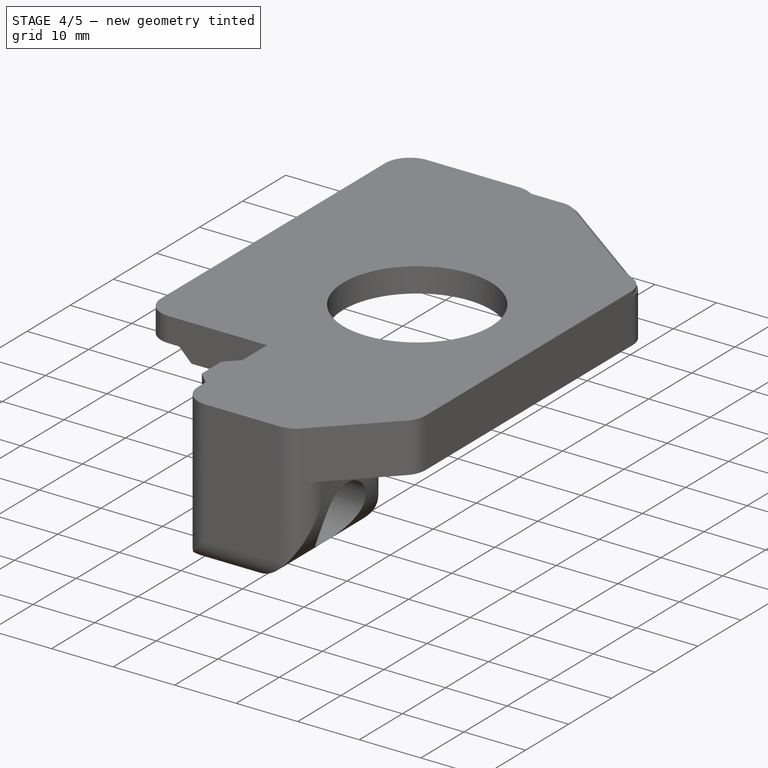
[diagram: stage 4 of 5 — iso view after this stage's code; geometry added in this stage tinted green]
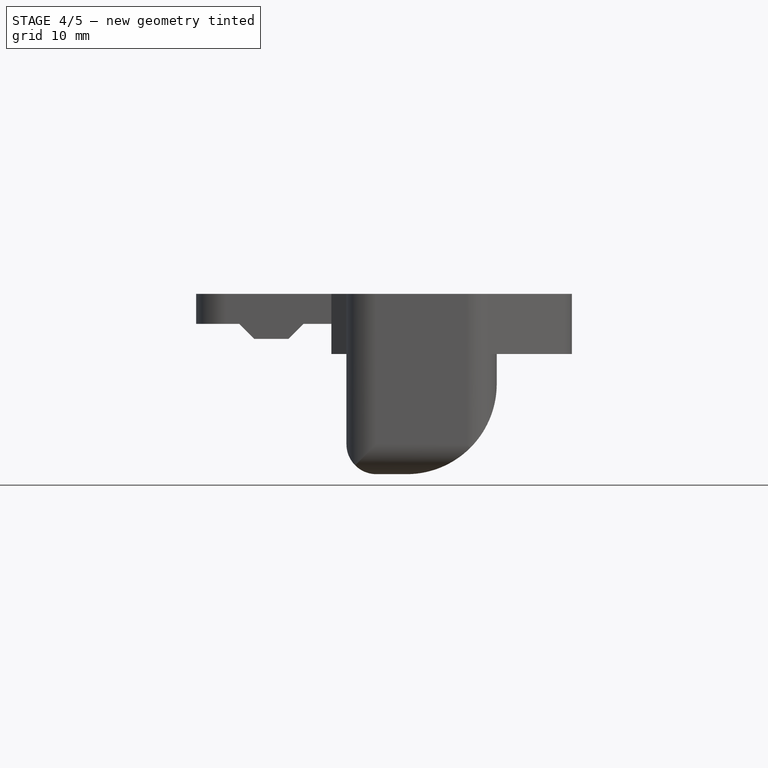
[diagram: stage 4 of 5 — front view after this stage's code; geometry added in this stage tinted green]
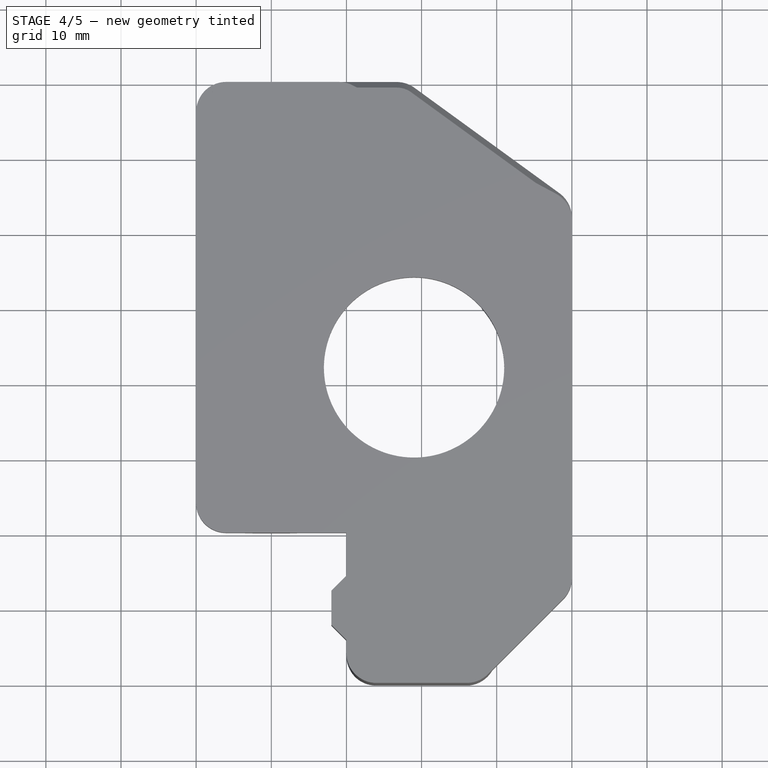
[diagram: stage 4 of 5 — top view after this stage's code; geometry added in this stage tinted green]
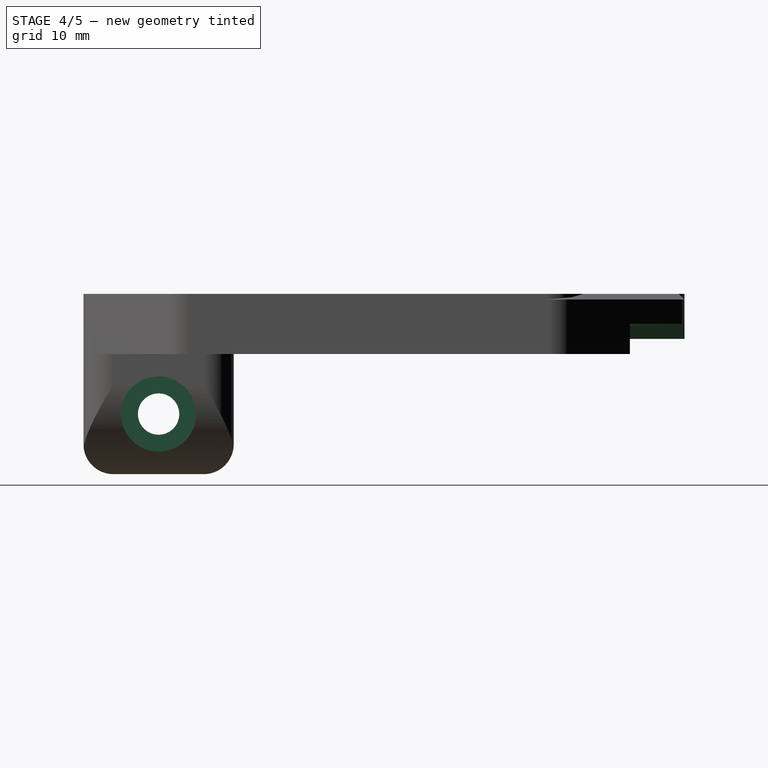
[diagram: stage 4 of 5 — right view after this stage's code; geometry added in this stage tinted green]
FEATURE [Sketcher::SketchObject] Sketch354
  ArcFitTolerance = 0
  AttachmentSupport = -> [XZ_Plane018]
  FullyConstrained = true
  MakeInternals = false
  MapMode = 5
  Placement = pos=(0,0,0) rot=(1,0,0;1.5708rad)
  sketch-geometry (6):
    g0: ArcOfCircle CenterX=4 CenterY=-16 CenterZ=0 NormalX=0 NormalY=0 NormalZ=1 AngleXU=0 Radius=4 StartAngle=3.1416 EndAngle=4.71239
    g1: ArcOfCircle CenterX=8 CenterY=-8 CenterZ=0 NormalX=0 NormalY=0 NormalZ=1 AngleXU=0 Radius=12 StartAngle=4.71239 EndAngle=6.28319
    g2: LineSegment StartX=8 StartY=-20 StartZ=0 EndX=20 EndY=-20 EndZ=0
    g3: LineSegment StartX=20 StartY=-8 StartZ=0 EndX=20 EndY=-20 EndZ=0
    g4: LineSegment StartX=4 StartY=-20 StartZ=0 EndX=2.68137e-11 EndY=-20 EndZ=0
    g5: LineSegment StartX=2.68137e-11 StartY=-20 StartZ=0 EndX=2.68137e-11 EndY=-16 EndZ=0
  constraints (18):
    c: PointOnObject(g0,g-2)
    c: Coincident(g3,g2)
    c: Vertical(g3)
    c: Coincident(g4,g0)
    c: Horizontal(g4)
    c: Tangent(g4,g0)
    c: Coincident(g5,g4)
    c: Coincident(g5,g0)
    c: Vertical(g5)
    c: Tangent(g5,g0)
    c: Tangent(g2,g1) = -1.5708
    c: Horizontal(g2)
    c: Horizontal(g2,g4)
    c: Radius(g0) = 4
    c: Radius(g1) = 12
    c: DistanceX(g4,g2) = 20
    c: DistanceY(g4) = -20
    c: Tangent(g3,g1) = 1.5708
FEATURE [PartDesign::Pocket] Pocket223
  BaseFeature = -> Pad087
  Direction = (0,1,-2e-16)
  Length = 5
  Length2 = 5
  Midplane = true
  Profile = -> Sketch354
  ReferenceAxis = -> Sketch354 [N_Axis]
  Suppressed = false
  Type = 1
FEATURE [Sketcher::SketchObject] Sketch355
  ArcFitTolerance = 0
  AttachmentSupport = -> [YZ_Plane018]
  FullyConstrained = true
  MakeInternals = false
  MapMode = 5
  Placement = pos=(0,0,0) rot=(0.57735,0.57735,0.57735;2.0944rad)
  sketch-geometry (7):
    g0: ArcOfCircle CenterX=-4 CenterY=-16 CenterZ=0 NormalX=0 NormalY=0 NormalZ=1 AngleXU=0 Radius=4 StartAngle=4.71239 EndAngle=6.28318
    g1: ArcOfCircle CenterX=-16 CenterY=-16 CenterZ=0 NormalX=0 NormalY=0 NormalZ=1 AngleXU=0 Radius=4 StartAngle=3.1416 EndAngle=4.71239
    g2: LineSegment StartX=-16 StartY=-20 StartZ=0 EndX=-20 EndY=-20 EndZ=0
    g3: LineSegment StartX=-20 StartY=-20 StartZ=0 EndX=-20 EndY=-16 EndZ=0
    g4: LineSegment StartX=-8.28391e-11 StartY=-16 StartZ=0 EndX=0 EndY=-20 EndZ=0
    g5: LineSegment StartX=0 StartY=-20 StartZ=0 EndX=-4 EndY=-20 EndZ=0
    g6: Circle CenterX=-10 CenterY=-12 CenterZ=0 NormalX=0 NormalY=0 NormalZ=1 AngleXU=0 Radius=2.75
  constraints (21):
    c: PointOnObject(g0,g-2)
    c: Coincident(g3,g2)
    c: Coincident(g3,g1)
    c: Tangent(g3,g1)
    c: Coincident(g4,g0)
    c: PointOnObject(g4,g-2)
    c: Tangent(g4,g0)
    c: Coincident(g5,g4)
    c: Tangent(g2,g1) = 1.5708
    c: Horizontal(g2)
    c: Vertical(g3)
    c: Radius(g1) = 4
    c: Horizontal(g2,g4)
    c: Horizontal(g5)
    c: Tangent(g5,g0) = 1.5708
    c: Equal(g0,g1)
    c: DistanceX(g2,g4) = 20
    c: DistanceY(g2) = -20
    c: DistanceY(g6) = -12
    c: DistanceX(g6) = -10
    c: Diameter(g6) = 5.5
FEATURE [PartDesign::Pocket] Pocket224
  BaseFeature = -> Pocket223
  Direction = (-1,0,0)
  Length = 5
  Length2 = 5
  Midplane = true
  Profile = -> Sketch355
  ReferenceAxis = -> Sketch355 [N_Axis]
  Suppressed = false
  Type = 1
FEATURE [Sketcher::SketchObject] Sketch356
  ArcFitTolerance = 0
  AttachmentOffset = pos=(0,0,8) rot=(0,0,1;0rad)
  AttachmentSupport = -> [YZ_Plane018]
  FullyConstrained = true
  MakeInternals = false
  MapMode = 5
  Placement = pos=(8,0,0) rot=(0.57735,0.57735,0.57735;2.0944rad)
  sketch-geometry (1):
    g0: Circle CenterX=-10 CenterY=-12 CenterZ=0 NormalX=0 NormalY=0 NormalZ=1 AngleXU=0 Radius=5
  constraints (3):
    c: Diameter(g0) = 10
    c: DistanceX(g0) = -10
    c: DistanceY(g0) = -12
FEATURE [PartDesign::Pocket] Pocket225
  BaseFeature = -> Pocket224
  Direction = (-1,0,0)
  Length = 5
  Length2 = 5
  Profile = -> Sketch356
  ReferenceAxis = -> Sketch356 [N_Axis]
  Reversed = true
  Suppressed = false
  Type = 1
FEATURE [Sketcher::SketchObject] Sketch357
  ArcFitTolerance = 0
  AttachmentSupport = -> [XZ_Plane018]
  FullyConstrained = true
  MakeInternals = false
  MapMode = 5
  Placement = pos=(0,0,0) rot=(1,0,0;1.5708rad)
  sketch-geometry (10):
    g0: LineSegment [constr] StartX=-14.7 StartY=0 StartZ=0 EndX=-5.3 EndY=0 EndZ=0
    g1: LineSegment [constr] StartX=-5.3 StartY=0 StartZ=0 EndX=-7.3 EndY=-2 EndZ=0
    g2: LineSegment [constr] StartX=-7.3 StartY=-2 StartZ=0 EndX=-12.7 EndY=-2 EndZ=0
    g3: LineSegment [constr] StartX=-12.7 StartY=-2 StartZ=0 EndX=-14.7 EndY=0 EndZ=0
    g4: GeomPoint [constr] X=-10 Y=-2 Z=0
    g5: LineSegment StartX=-5.72426 StartY=0 StartZ=0 EndX=-7.72426 EndY=-2 EndZ=0
    g6: LineSegment StartX=-7.72426 StartY=-2 StartZ=0 EndX=-12.2757 EndY=-2 EndZ=0
    g7: LineSegment StartX=-12.2757 StartY=-2 StartZ=0 EndX=-14.2757 EndY=0 EndZ=0
    g8: LineSegment StartX=-14.2757 StartY=0 StartZ=0 EndX=-5.72426 EndY=0 EndZ=0
    g9: LineSegment [constr] StartX=-6.3 StartY=-1 StartZ=0 EndX=-6.51213 EndY=-0.787868 EndZ=0
  constraints (27):
    c: PointOnObject(g0,g-1)
    c: PointOnObject(g0,g-1)
    c: Coincident(g0,g1)
    c: Coincident(g1,g2)
    c: Horizontal(g2)
    c: Coincident(g2,g3)
    c: Coincident(g3,g0)
    c: Perpendicular(g1,g3)
    c: Angle(g1) = -2.35619
    c: DistanceY(g1,g1) = 2
    c: Symmetric(g2,g1,g4)
    c: DistanceX(g4) = -10
    c: DistanceX(g2,g2) = 5.4
    c: PointOnObject(g5,g0)
    c: PointOnObject(g5,g2)
    c: Coincident(g5,g6)
    c: Coincident(g6,g7)
    c: PointOnObject(g7,g0)
    c: Coincident(g7,g8)
    c: Coincident(g8,g5)
    c: Symmetric(g5,g6,g4)
    c: Parallel(g5,g1)
    c: Parallel(g7,g3)
    c: PointOnObject(g9,g5)
    c: Perpendicular(g1,g9)
    c: Symmetric(g1,g0,g9)
    c: Distance(g9) = 0.3
FEATURE [PartDesign::Pad] Pad088
  BaseFeature = -> Pocket225
  Direction = (0,-1,2e-16)
  Length = 60
  Length2 = 10
  Profile = -> Sketch357
  ReferenceAxis = -> Sketch357 [N_Axis]
  Reversed = true
  Suppressed = false
  Type = 0
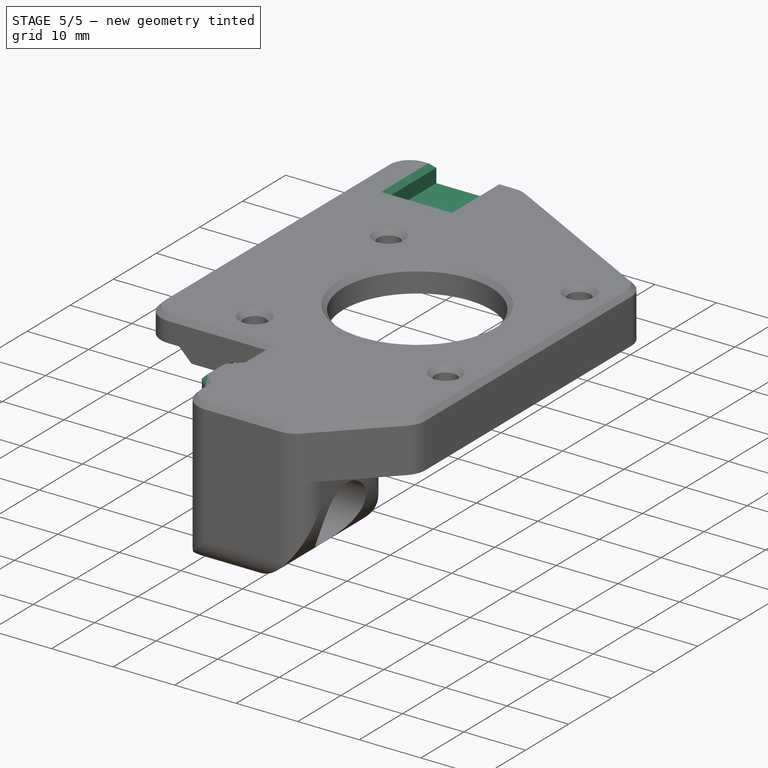
[diagram: stage 5 of 5 — iso view after this stage's code; geometry added in this stage tinted green]
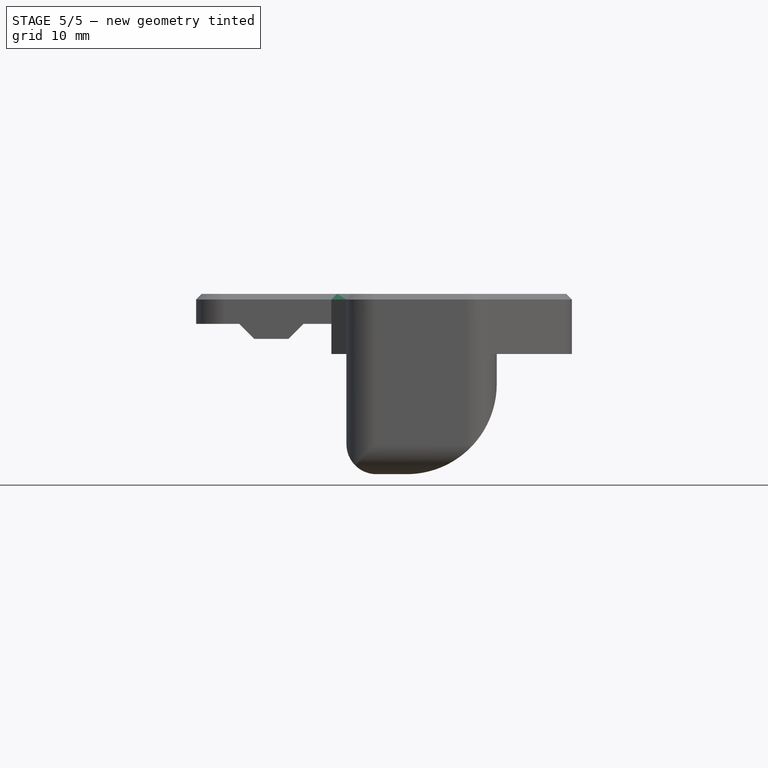
[diagram: stage 5 of 5 — front view after this stage's code; geometry added in this stage tinted green]
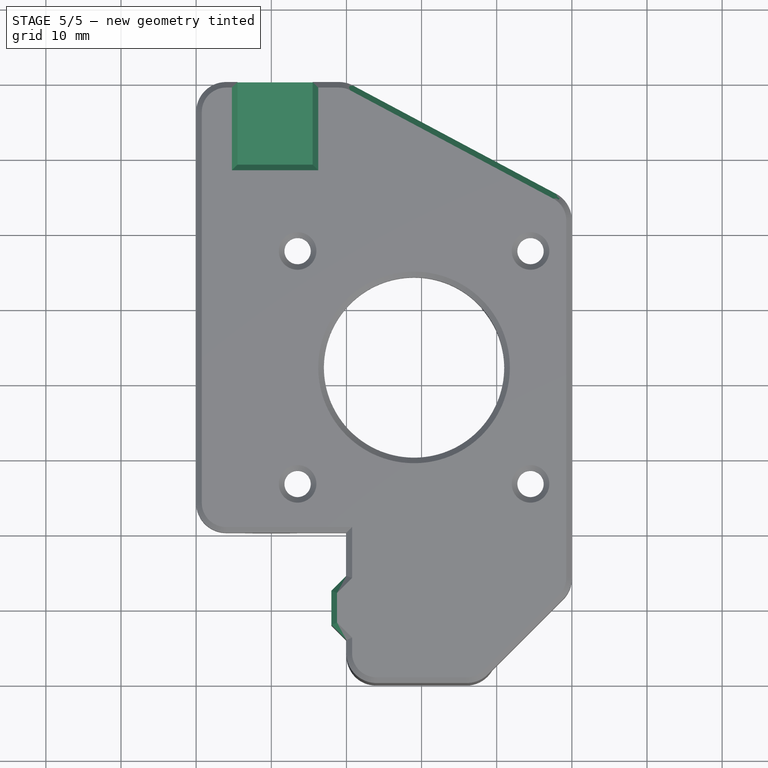
[diagram: stage 5 of 5 — top view after this stage's code; geometry added in this stage tinted green]
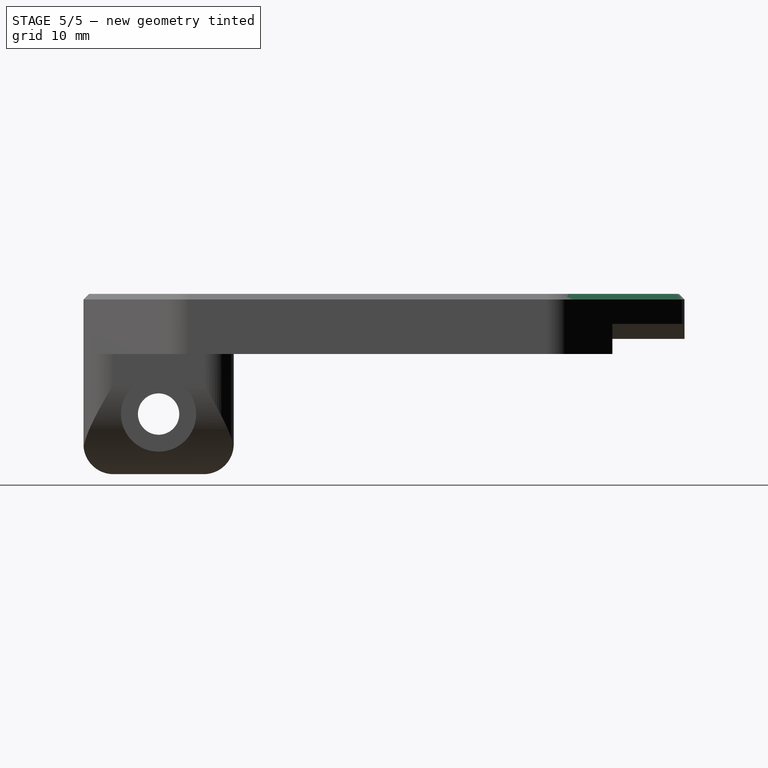
[diagram: stage 5 of 5 — right view after this stage's code; geometry added in this stage tinted green]
FEATURE [Sketcher::SketchObject] Sketch358
  ArcFitTolerance = 0
  AttachmentSupport = -> [XY_Plane018]
  FullyConstrained = true
  MakeInternals = false
  MapMode = 5
  sketch-geometry (10):
    g0: LineSegment [constr] StartX=0 StartY=-5.3 StartZ=0 EndX=0 EndY=-14.7 EndZ=0
    g1: LineSegment [constr] StartX=0 StartY=-14.7 StartZ=0 EndX=-2 EndY=-12.7 EndZ=0
    g2: LineSegment [constr] StartX=-2 StartY=-12.7 StartZ=0 EndX=-2 EndY=-7.3 EndZ=0
    g3: LineSegment [constr] StartX=-2 StartY=-7.3 StartZ=0 EndX=0 EndY=-5.3 EndZ=0
    g4: LineSegment StartX=1.13e-14 StartY=-5.72426 StartZ=0 EndX=-2 EndY=-7.72426 EndZ=0
    g5: LineSegment StartX=-2 StartY=-7.72426 StartZ=0 EndX=-2 EndY=-12.2757 EndZ=0
    g6: LineSegment StartX=-2 StartY=-12.2757 StartZ=0 EndX=-1.15e-14 EndY=-14.2757 EndZ=0
    g7: LineSegment StartX=-1.15e-14 StartY=-14.2757 StartZ=0 EndX=1.13e-14 EndY=-5.72426 EndZ=0
    g8: GeomPoint [constr] X=0 Y=-10 Z=0
    g9: LineSegment [constr] StartX=-1 StartY=-6.3 StartZ=0 EndX=-0.787868 EndY=-6.51213 EndZ=0
  constraints (27):
    c: PointOnObject(g0,g-2)
    c: PointOnObject(g0,g-2)
    c: Coincident(g0,g1)
    c: Coincident(g1,g2)
    c: Vertical(g2)
    c: Coincident(g2,g3)
    c: Coincident(g3,g0)
    c: PointOnObject(g4,g0)
    c: Coincident(g4,g5)
    c: PointOnObject(g5,g2)
    c: Coincident(g5,g6)
    c: Coincident(g6,g7)
    c: Coincident(g7,g4)
    c: Symmetric(g0,g0,g8)
    c: Perpendicular(g3,g1)
    c: Vertical(g5)
    c: Parallel(g4,g3)
    c: Parallel(g1,g6)
    c: Symmetric(g6,g4,g8)
    c: Angle(g3) = 0.785398
    c: DistanceX(g3,g3) = 2
    c: DistanceY(g2,g2) = 5.4
    c: DistanceY(g8) = -10
    c: PointOnObject(g9,g4)
    c: Symmetric(g0,g2,g9)
    c: Distance(g9) = 0.3
    c: Perpendicular(g3,g9)
FEATURE [PartDesign::Pad] Pad089
  BaseFeature = -> Pad088
  Direction = (0,0,1)
  Length = 8
  Length2 = 10
  Midplane = true
  Profile = -> Sketch358
  ReferenceAxis = -> Sketch358 [N_Axis]
  Suppressed = false
  Type = 0
FEATURE [Sketcher::SketchObject] Sketch
  ArcFitTolerance = 1e-06
  AttachmentOffset = pos=(0,0,1) rot=(0,0,1;0rad)
  AttachmentSupport = -> [XY_Plane018]
  FullyConstrained = true
  MakeInternals = false
  MapMode = 5
  Placement = pos=(0,0,1) rot=(0,0,1;0rad)
  sketch-geometry (5):
    g0: LineSegment StartX=-14.5 StartY=60 StartZ=0 EndX=-14.5 EndY=49 EndZ=0
    g1: LineSegment StartX=-14.5 StartY=49 StartZ=0 EndX=-4.5 EndY=49 EndZ=0
    g2: LineSegment StartX=-4.5 StartY=49 StartZ=0 EndX=-4.5 EndY=60 EndZ=0
    g3: LineSegment StartX=-4.5 StartY=60 StartZ=0 EndX=-14.5 EndY=60 EndZ=0
    g4: GeomPoint X=-9.5 Y=60 Z=0
  constraints (13):
    c: Coincident(g0,g1)
    c: Coincident(g1,g2)
    c: Coincident(g2,g3)
    c: Coincident(g3,g0)
    c: Vertical(g0)
    c: Vertical(g2)
    c: Horizontal(g1)
    c: Horizontal(g3)
    c: DistanceY(g2,g2) = 11
    c: Symmetric(g3,g3,g4)
    c: DistanceX(g4) = -9.5
    c: DistanceY(g4) = 60
    c: DistanceX(g1,g1) = 10
FEATURE [PartDesign::Pocket] Pocket227
  BaseFeature = -> Pad089
  Direction = (0,0,-1)
  Length = 5
  Length2 = 5
  Profile = -> Sketch
  ReferenceAxis = -> Sketch [N_Axis]
  Refine = true
  Reversed = true
  Suppressed = false
  Type = 1
FEATURE [PartDesign::Body] Body017  label="left-xy-motor-mount-vslot"
  AllowCompound = false
  Group = -> [Sketch001,Pad003,Sketch002,Pocket,Sketch003,Pad004,Sketch004,Pocket001,Sketch005,Pocket002,Sketch006,Pocket003,Sketch348,Pad084,Sketch349,Pad085,Sketch360,Groove,MultiTransform,LinearPattern,LinearPattern001,Chamfer]
  Origin = -> Origin017
  Tip = -> Chamfer
FEATURE [PartDesign::SubShapeBinder] Binder
  BindCopyOnChange = 0
  BindMode = 0
  ClaimChildren = false
  Context = -> Body018 [Binder.]
  Fuse = false
  MakeFace = true
  OffsetFill = false
  OffsetIntersection = false
  OffsetJoinType = 0
  OffsetOpenResult = false
  PartialLoad = false
  Relative = true
  Support = -> [Body017[Sketch360.]]
  _Version = 2
FEATURE [PartDesign::Groove] Groove001
  Angle = 360
  Angle2 = 60
  Axis = (0,2e-16,1)
  Base = (-6.5,6.5,-4)
  BaseFeature = -> Pocket227
  Profile = -> Binder
  ReferenceAxis = -> Binder [Edge6]
  Reversed = true
  Suppressed = false
  Type = 0
FEATURE [PartDesign::LinearPattern] LinearPattern002
  Direction = -> X_Axis018
  Length = 31
  Mode = 0
  Occurrences = 2
  Offset = 31
  Suppressed = false
  TransformMode = 0
FEATURE [PartDesign::LinearPattern] LinearPattern003
  Direction = -> Y_Axis018
  Length = 31
  Mode = 0
  Occurrences = 2
  Offset = 31
  Suppressed = false
  TransformMode = 0
FEATURE [PartDesign::MultiTransform] MultiTransform001
  BaseFeature = -> Groove001
  Originals = -> [Groove001]
  Suppressed = false
  TransformMode = 0
  Transformations = -> [LinearPattern002,LinearPattern003]
FEATURE [PartDesign::Chamfer] Chamfer001
  Angle = 45
  Base = -> MultiTransform001 [Face6]
  BaseFeature = -> MultiTransform001
  ChamferType = 0
  FlipDirection = false
  Size = 0.75
  Size2 = 1
  SupportTransform = false
  Suppressed = false
  UseAllEdges = false
FEATURE [PartDesign::Body] Body018  label="left-xy-motor-mount-rail"
  AllowCompound = false
  Group = -> [Sketch351,Pad086,Sketch352,Pocket222,Sketch353,Pad087,Sketch354,Pocket223,Sketch355,Pocket224,Sketch356,Pocket225,Sketch357,Pad088,Sketch358,Pad089,Sketch,Pocket227,Binder,Groove001,MultiTransform001,LinearPattern002,LinearPattern003,Chamfer001]
  Origin = -> Origin018
  Tip = -> Chamfer001
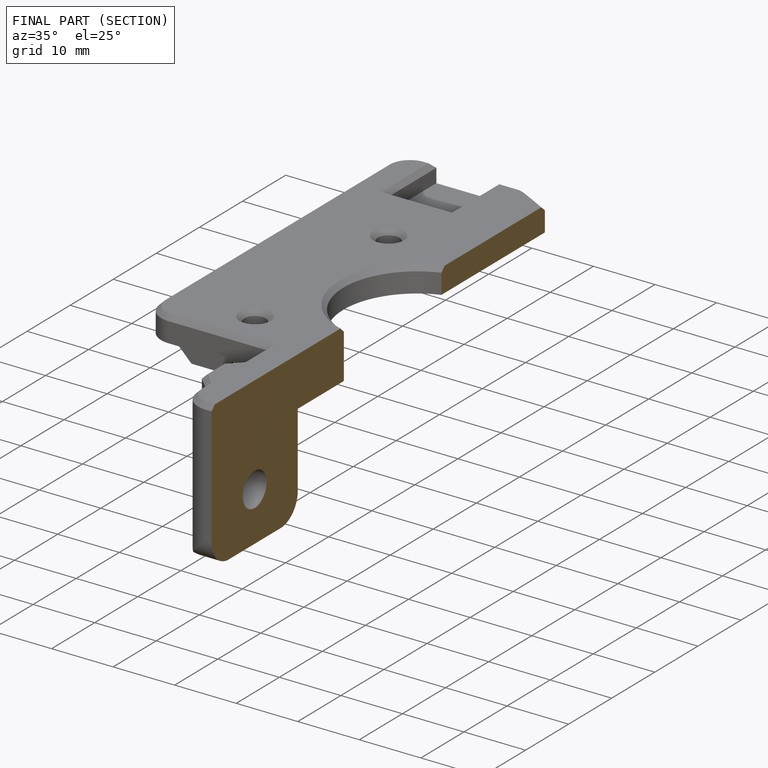
[diagram: finished part — half-section view (interior)]
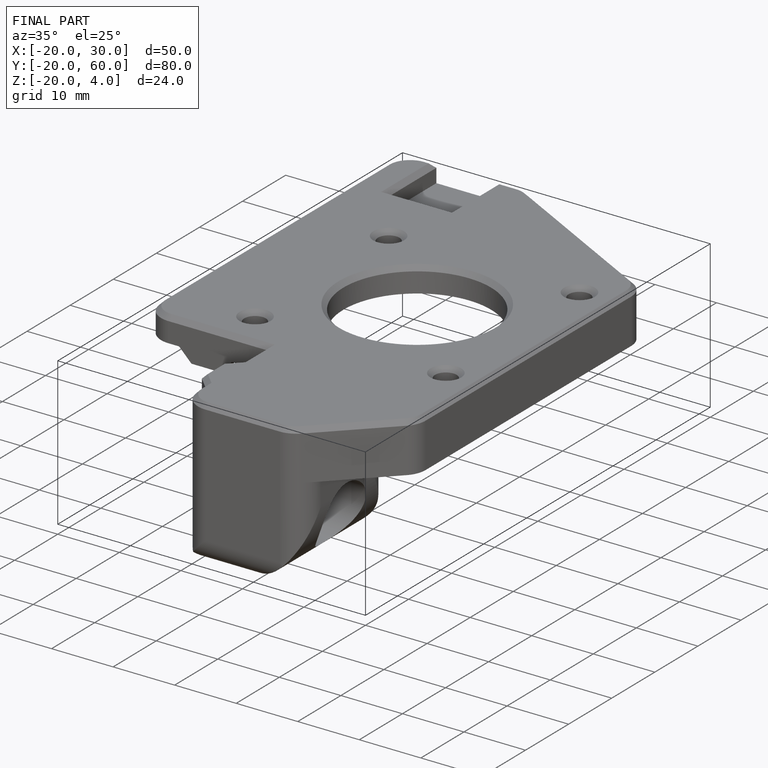
[diagram: finished part — iso view with bounding-box wireframe]
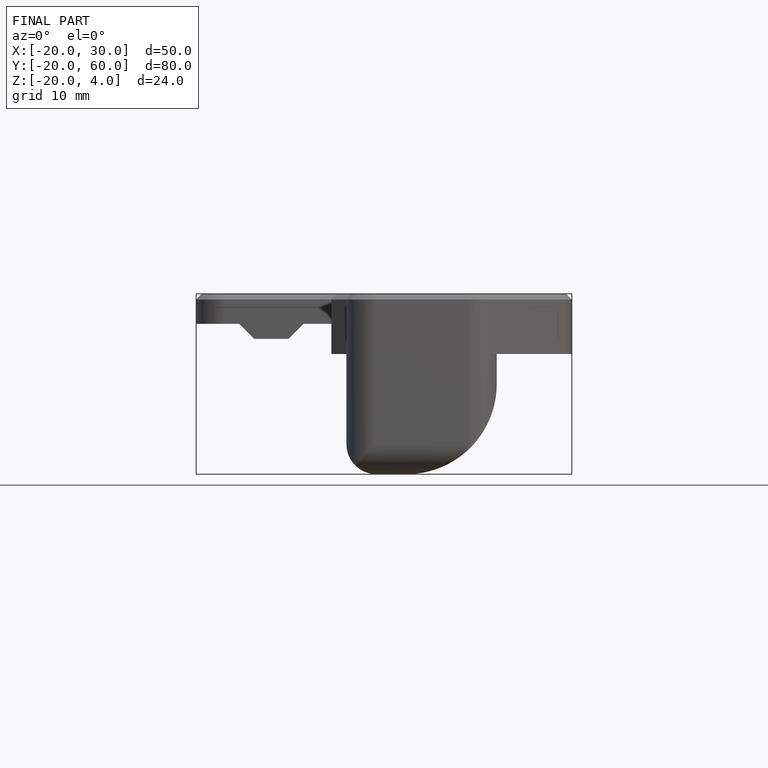
[diagram: finished part — front view with bounding-box wireframe]
